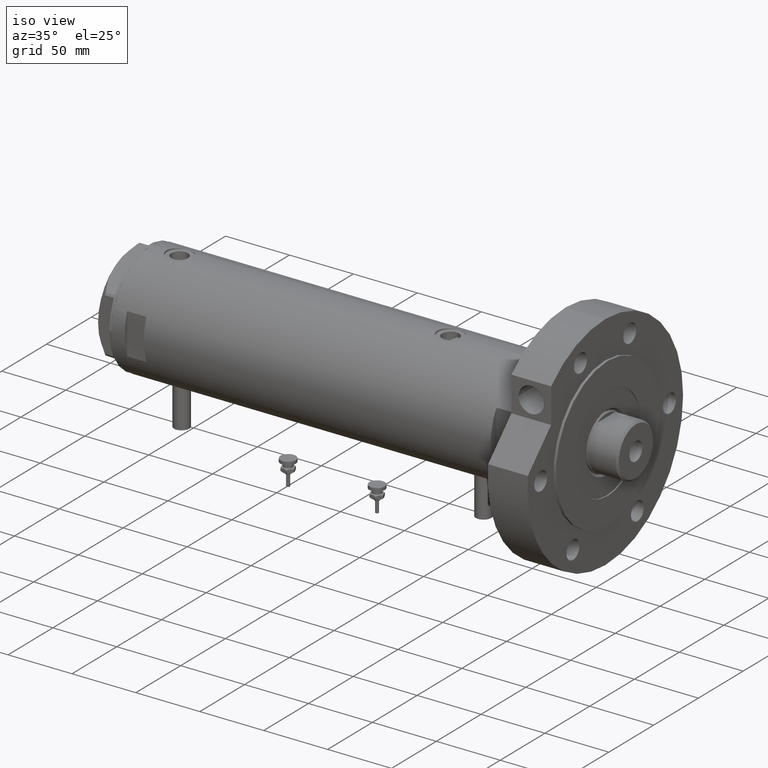
[diagram: clean part render]
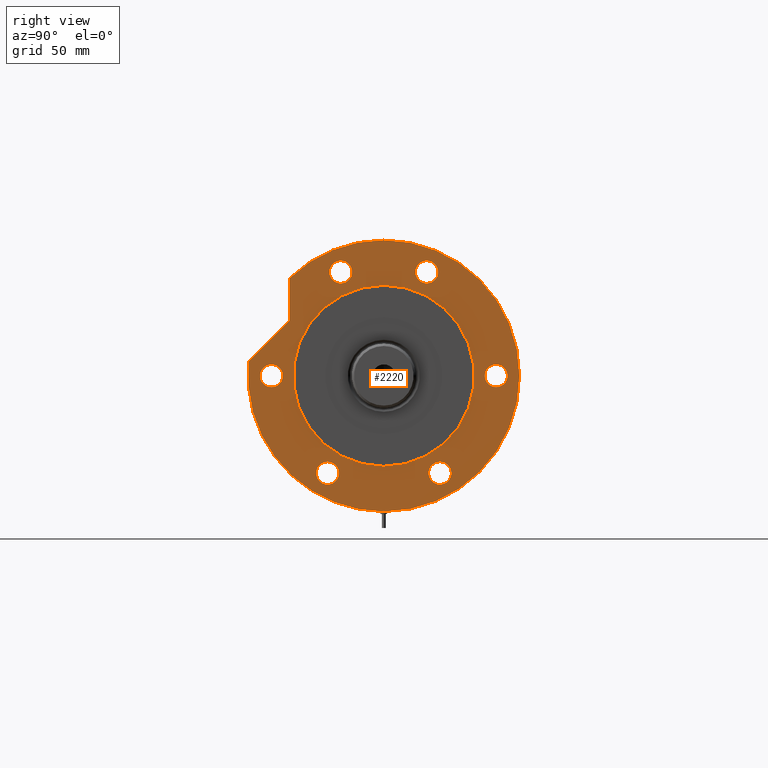
[diagram: tour spotlight — one face highlighted and labeled with its STEP entity id]
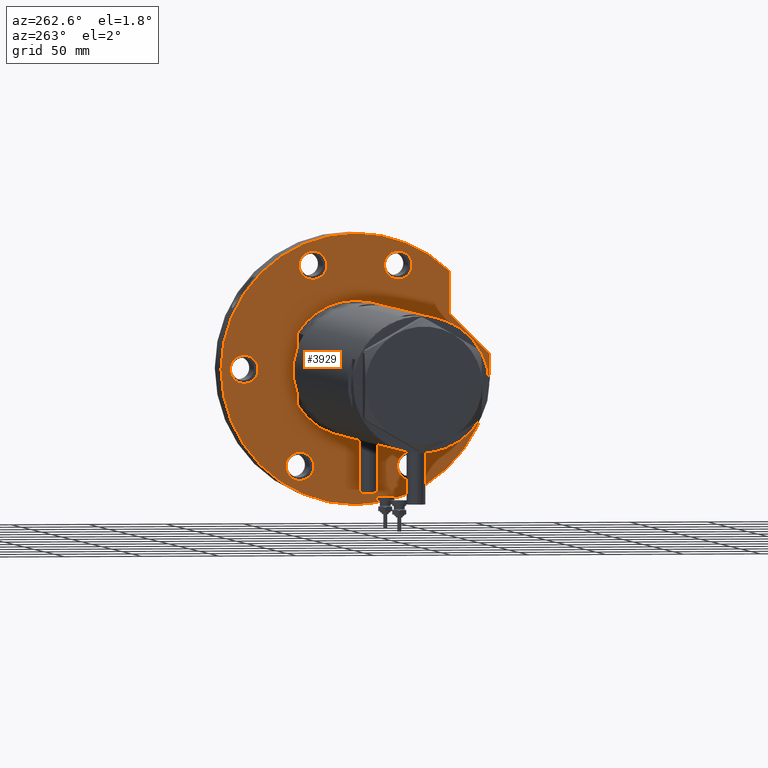
[diagram: tour spotlight — one face highlighted and labeled with its STEP entity id]
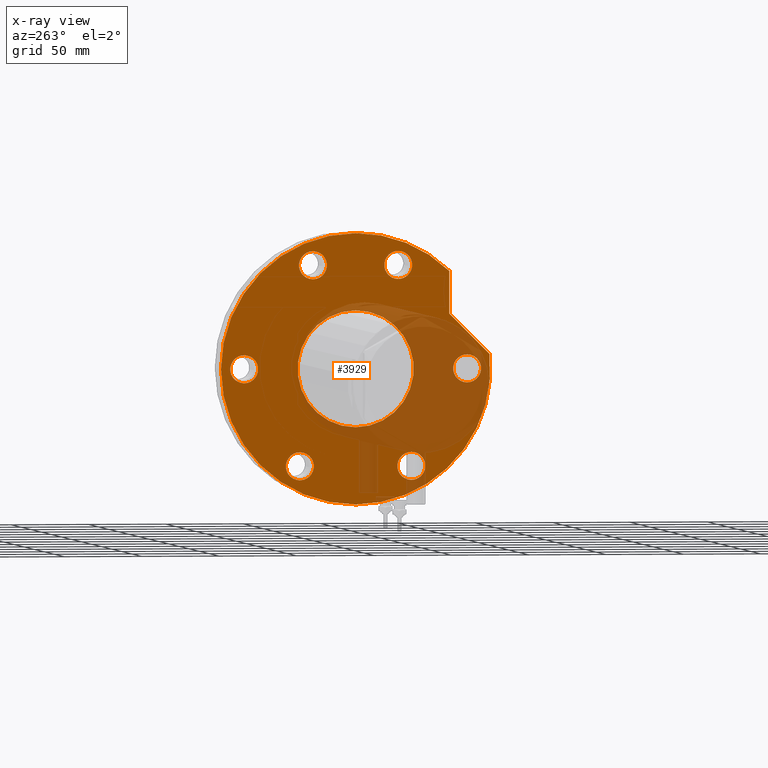
[diagram: x-ray of the same camera — body ghosted, this tour face saturated]
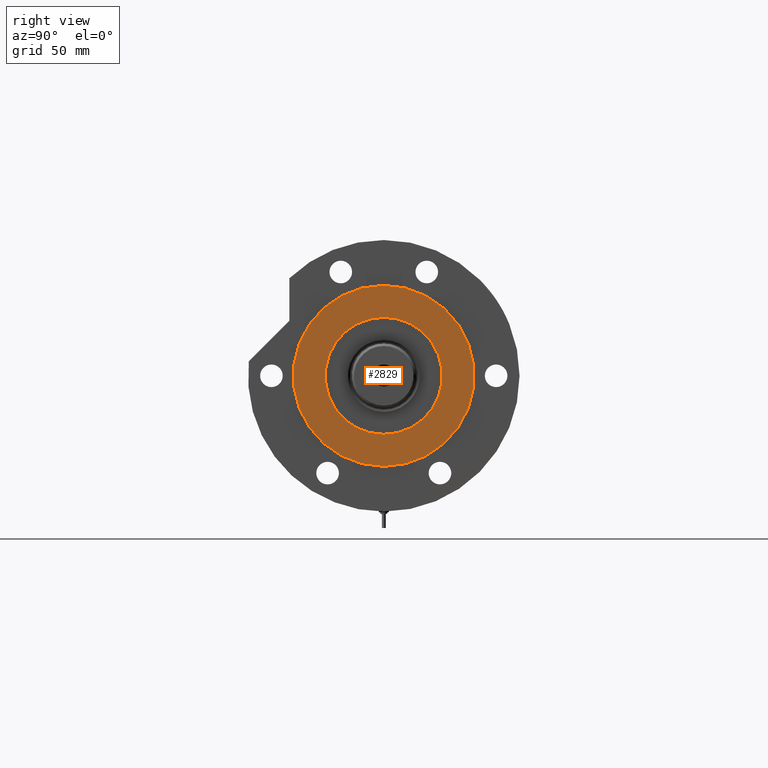
[diagram: tour spotlight — one face highlighted and labeled with its STEP entity id]
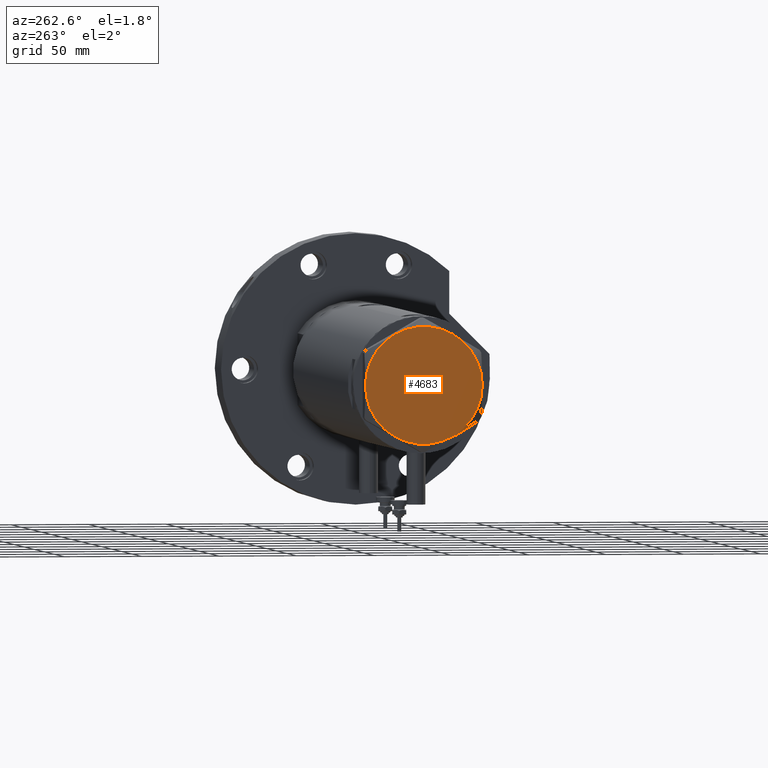
[diagram: tour spotlight — one face highlighted and labeled with its STEP entity id]
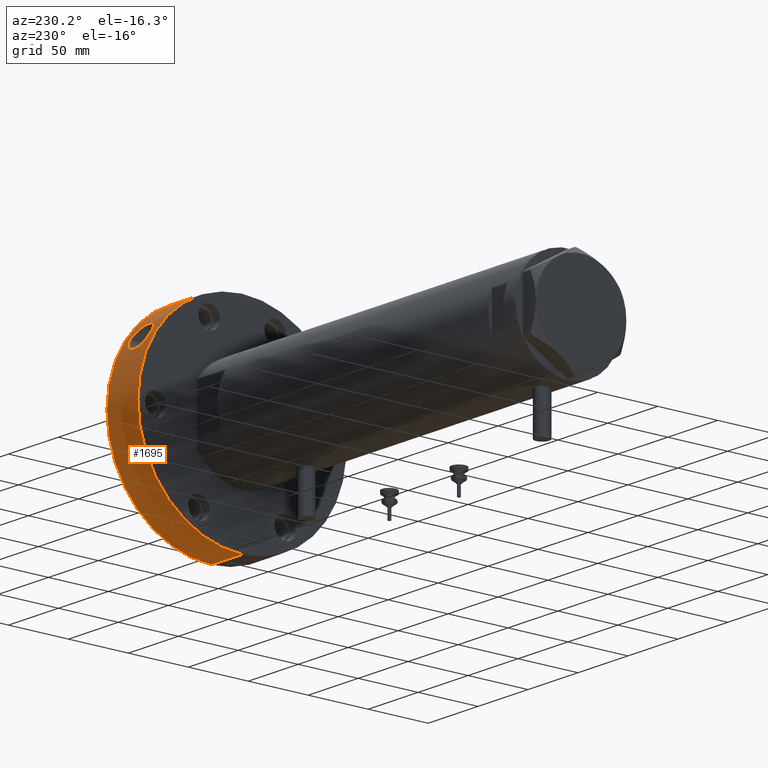
[diagram: tour spotlight — one face highlighted and labeled with its STEP entity id]
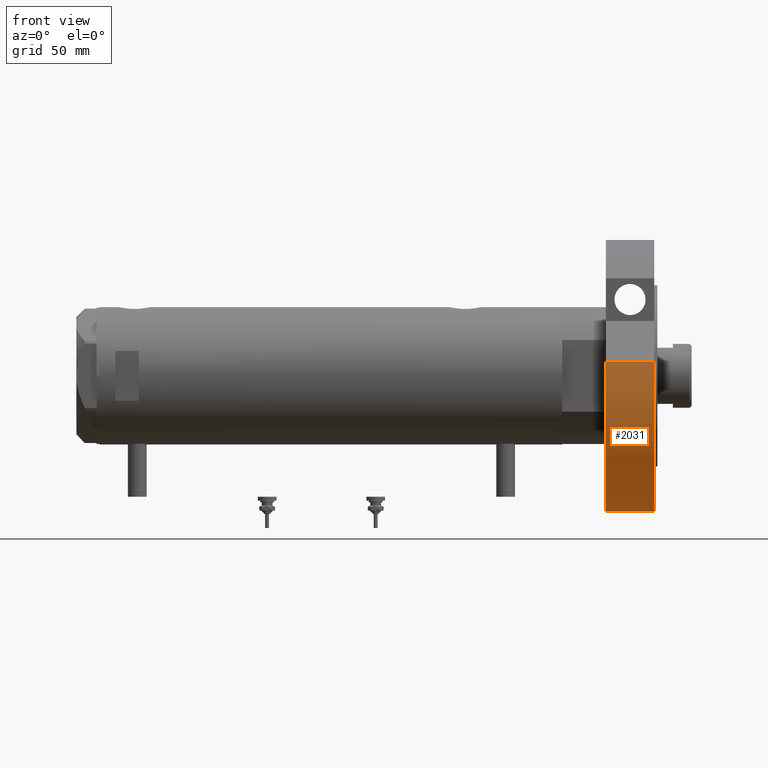
[diagram: tour spotlight — one face highlighted and labeled with its STEP entity id]
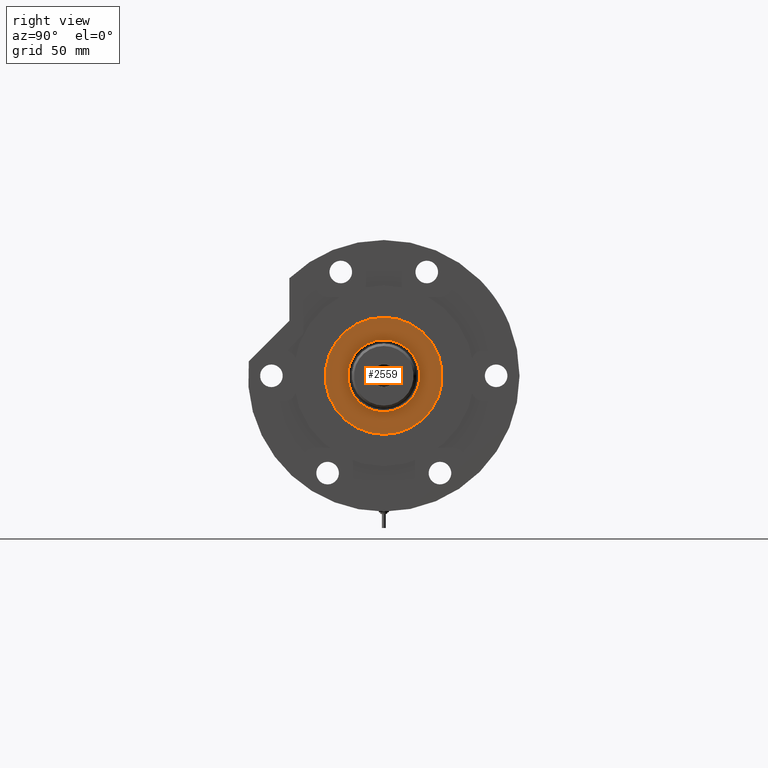
[diagram: tour spotlight — one face highlighted and labeled with its STEP entity id]
A machine part: a face-by-face anatomy tour. The part has 257 B-rep faces; the first image is the clean iso view, then the 7 largest visible faces are spotlighted one at a time (largest first), each with its STEP entity span.

Face 1 — right view, entity #2220. In plain terms, the highlighted planar face has unit normal (1, 0, -0).
Definition (entity closure, byte-faithful):
#6 = LINE ( 'NONE', #6870, #3898 ) ;
#28 = AXIS2_PLACEMENT_3D ( 'NONE', #3777, #815, #324 ) ;
#117 = DIRECTION ( 'NONE',  ( 0.000000000000000000, 0.000000000000000000, 1.000000000000000000 ) ) ;
#123 = VERTEX_POINT ( 'NONE', #798 ) ;
#194 = DIRECTION ( 'NONE',  ( 1.000000000000000000, 0.000000000000000000, 0.000000000000000000 ) ) ;
#201 = CARTESIAN_POINT ( 'NONE',  ( -62.35382907247942086, -36.00000000000027711, 31.00000000000000000 ) ) ;
#209 = CARTESIAN_POINT ( 'NONE',  ( 0.000000000000000000, 0.000000000000000000, 31.00000000000000000 ) ) ;
#282 = CARTESIAN_POINT ( 'NONE',  ( -7.250000000000001776, 72.00000000000000000, 31.00000000000000000 ) ) ;
#323 = CARTESIAN_POINT ( 'NONE',  ( 0.000000000000000000, 72.00000000000000000, 31.00000000000000000 ) ) ;
#324 = DIRECTION ( 'NONE',  ( 1.000000000000000000, 0.000000000000000000, 0.000000000000000000 ) ) ;
#341 = CARTESIAN_POINT ( 'NONE',  ( 66.51932634081252615, 27.55320713028675073, 31.00000000000000000 ) ) ;
#352 = AXIS2_PLACEMENT_3D ( 'NONE', #7501, #6994, #2166 ) ;
#443 = ORIENTED_EDGE ( 'NONE', *, *, #3596, .F. ) ;
#450 = DIRECTION ( 'NONE',  ( 1.000000000000000000, 0.000000000000000000, 0.000000000000000000 ) ) ;
#474 = CIRCLE ( 'NONE', #5956, 87.00000000000000000 ) ;
#516 = DIRECTION ( 'NONE',  ( 0.000000000000000000, 0.000000000000000000, 1.000000000000000000 ) ) ;
#543 = EDGE_CURVE ( 'NONE', #7251, #5629, #1677, .T. ) ;
#562 = CARTESIAN_POINT ( 'NONE',  ( 0.000000000000000000, -72.00000000000000000, 31.00000000000000000 ) ) ;
#653 = ORIENTED_EDGE ( 'NONE', *, *, #3333, .F. ) ;
#681 = CARTESIAN_POINT ( 'NONE',  ( 0.000000000000000000, 0.000000000000000000, 31.00000000000000000 ) ) ;
#757 = AXIS2_PLACEMENT_3D ( 'NONE', #3318, #516, #6813 ) ;
#778 = EDGE_CURVE ( 'NONE', #1156, #7175, #1527, .T. ) ;
#787 = EDGE_CURVE ( 'NONE', #2539, #3770, #6292, .T. ) ;
#798 = CARTESIAN_POINT ( 'NONE',  ( 73.76932634081251194, 27.55320713028675073, 31.00000000000000000 ) ) ;
#815 = DIRECTION ( 'NONE',  ( 0.000000000000000000, 0.000000000000000000, 1.000000000000000000 ) ) ;
#865 = EDGE_CURVE ( 'NONE', #6428, #123, #1670, .T. ) ;
#988 = CARTESIAN_POINT ( 'NONE',  ( 58.00000000000000000, 7.102951435054648059E-15, 31.00000000000000000 ) ) ;
#1027 = FACE_BOUND ( 'NONE', #6602, .T. ) ;
#1056 = DIRECTION ( 'NONE',  ( 0.000000000000000000, 0.000000000000000000, 1.000000000000000000 ) ) ;
#1107 = CARTESIAN_POINT ( 'NONE',  ( 9.196694222441541555, 86.51254715576759224, 31.00000000000000000 ) ) ;
#1116 = CIRCLE ( 'NONE', #757, 7.250000000000006217 ) ;
#1125 = CARTESIAN_POINT ( 'NONE',  ( 59.26932634081251905, 27.55320713028675073, 31.00000000000000000 ) ) ;
#1156 = VERTEX_POINT ( 'NONE', #3119 ) ;
#1163 = VERTEX_POINT ( 'NONE', #282 ) ;
#1175 = VERTEX_POINT ( 'NONE', #5406 ) ;
#1191 = CIRCLE ( 'NONE', #352, 7.249999999999992895 ) ;
#1279 = ORIENTED_EDGE ( 'NONE', *, *, #5266, .F. ) ;
#1337 = AXIS2_PLACEMENT_3D ( 'NONE', #6028, #3688, #1940 ) ;
#1394 = EDGE_CURVE ( 'NONE', #5629, #7251, #4366, .T. ) ;
#1409 = ORIENTED_EDGE ( 'NONE', *, *, #3000, .T. ) ;
#1453 = FACE_BOUND ( 'NONE', #2875, .T. ) ;
#1513 = CARTESIAN_POINT ( 'NONE',  ( -69.60382907247941375, -36.00000000000027711, 31.00000000000000000 ) ) ;
#1527 = LINE ( 'NONE', #6060, #2746 ) ;
#1567 = AXIS2_PLACEMENT_3D ( 'NONE', #323, #3776, #4802 ) ;
#1593 = DIRECTION ( 'NONE',  ( 1.000000000000000000, 0.000000000000000000, 0.000000000000000000 ) ) ;
#1621 = ORIENTED_EDGE ( 'NONE', *, *, #1394, .F. ) ;
#1628 = DIRECTION ( 'NONE',  ( 0.000000000000000000, 0.000000000000000000, 1.000000000000000000 ) ) ;
#1670 = CIRCLE ( 'NONE', #4211, 7.249999999999992895 ) ;
#1671 = VERTEX_POINT ( 'NONE', #1107 ) ;
#1677 = CIRCLE ( 'NONE', #6309, 7.250000000000001776 ) ;
#1693 = DIRECTION ( 'NONE',  ( 0.000000000000000000, 0.000000000000000000, 1.000000000000000000 ) ) ;
#1728 = DIRECTION ( 'NONE',  ( 0.000000000000000000, 0.000000000000000000, 1.000000000000000000 ) ) ;
#1765 = EDGE_LOOP ( 'NONE', ( #2023, #653 ) ) ;
#1940 = DIRECTION ( 'NONE',  ( 1.000000000000000000, 0.000000000000000000, 0.000000000000000000 ) ) ;
#1944 = DIRECTION ( 'NONE',  ( 1.000000000000000000, 0.000000000000000000, 0.000000000000000000 ) ) ;
#1978 = ORIENTED_EDGE ( 'NONE', *, *, #2124, .F. ) ;
#2023 = ORIENTED_EDGE ( 'NONE', *, *, #4710, .F. ) ;
#2098 = CARTESIAN_POINT ( 'NONE',  ( 0.000000000000000000, 0.000000000000000000, 31.00000000000000000 ) ) ;
#2108 = FACE_OUTER_BOUND ( 'NONE', #2543, .T. ) ;
#2124 = EDGE_CURVE ( 'NONE', #123, #6428, #6546, .T. ) ;
#2166 = DIRECTION ( 'NONE',  ( 1.000000000000000000, 0.000000000000000000, 0.000000000000000000 ) ) ;
#2220 = ADVANCED_FACE ( 'NONE', ( #1027, #4513, #4990, #2786, #1453, #2745, #2108, #5066 ), #6774, .T. ) ;
#2282 = VERTEX_POINT ( 'NONE', #6646 ) ;
#2320 = VERTEX_POINT ( 'NONE', #5389 ) ;
#2340 = CARTESIAN_POINT ( 'NONE',  ( 0.000000000000000000, -72.00000000000000000, 31.00000000000000000 ) ) ;
#2539 = VERTEX_POINT ( 'NONE', #1513 ) ;
#2543 = EDGE_LOOP ( 'NONE', ( #7149, #6721, #4988, #1409, #6114 ) ) ;
#2626 = CARTESIAN_POINT ( 'NONE',  ( -58.00000000000000000, 0.000000000000000000, 31.00000000000000000 ) ) ;
#2673 = CIRCLE ( 'NONE', #7460, 87.00000000000000000 ) ;
#2725 = DIRECTION ( 'NONE',  ( 0.7071067811865511255, -0.7071067811865440200, 0.000000000000000000 ) ) ;
#2729 = ORIENTED_EDGE ( 'NONE', *, *, #4028, .F. ) ;
#2745 = FACE_BOUND ( 'NONE', #4884, .T. ) ;
#2746 = VECTOR ( 'NONE', #4856, 1000.000000000000000 ) ;
#2754 = AXIS2_PLACEMENT_3D ( 'NONE', #2340, #1693, #6394 ) ;
#2786 = FACE_BOUND ( 'NONE', #5042, .T. ) ;
#2787 = CARTESIAN_POINT ( 'NONE',  ( -55.10382907247942796, -36.00000000000027711, 31.00000000000000000 ) ) ;
#2798 = CARTESIAN_POINT ( 'NONE',  ( 66.51932634081252615, -27.55320713028675073, 31.00000000000000000 ) ) ;
#2804 = CIRCLE ( 'NONE', #1337, 58.00000000000000000 ) ;
#2811 = EDGE_CURVE ( 'NONE', #4539, #1163, #7432, .T. ) ;
#2840 = CARTESIAN_POINT ( 'NONE',  ( 7.250000000000001776, 72.00000000000000000, 31.00000000000000000 ) ) ;
#2875 = EDGE_LOOP ( 'NONE', ( #4451, #6984 ) ) ;
#2887 = EDGE_CURVE ( 'NONE', #3770, #2539, #1191, .T. ) ;
#2897 = CARTESIAN_POINT ( 'NONE',  ( 7.250000000000001776, -72.00000000000000000, 31.00000000000000000 ) ) ;
#2918 = AXIS2_PLACEMENT_3D ( 'NONE', #5332, #1728, #4064 ) ;
#2990 = AXIS2_PLACEMENT_3D ( 'NONE', #201, #5322, #6520 ) ;
#3000 = EDGE_CURVE ( 'NONE', #2320, #6226, #474, .T. ) ;
#3043 = ORIENTED_EDGE ( 'NONE', *, *, #543, .F. ) ;
#3119 = CARTESIAN_POINT ( 'NONE',  ( 35.23236590573035443, 60.47687547247904405, 31.00000000000000000 ) ) ;
#3250 = AXIS2_PLACEMENT_3D ( 'NONE', #3918, #3340, #450 ) ;
#3318 = CARTESIAN_POINT ( 'NONE',  ( -62.35382907247965534, 35.99999999999985079, 31.00000000000000000 ) ) ;
#3333 = EDGE_CURVE ( 'NONE', #1175, #6167, #5458, .T. ) ;
#3340 = DIRECTION ( 'NONE',  ( 0.000000000000000000, 0.000000000000000000, 1.000000000000000000 ) ) ;
#3347 = DIRECTION ( 'NONE',  ( 0.000000000000000000, 0.000000000000000000, 1.000000000000000000 ) ) ;
#3393 = ORIENTED_EDGE ( 'NONE', *, *, #4986, .F. ) ;
#3396 = DIRECTION ( 'NONE',  ( 1.000000000000000000, 0.000000000000000000, 0.000000000000000000 ) ) ;
#3453 = DIRECTION ( 'NONE',  ( 1.000000000000000000, 0.000000000000000000, 0.000000000000000000 ) ) ;
#3596 = EDGE_CURVE ( 'NONE', #1163, #4539, #3887, .T. ) ;
#3603 = ORIENTED_EDGE ( 'NONE', *, *, #865, .F. ) ;
#3643 = DIRECTION ( 'NONE',  ( 0.000000000000000000, 0.000000000000000000, 1.000000000000000000 ) ) ;
#3688 = DIRECTION ( 'NONE',  ( 0.000000000000000000, 0.000000000000000000, 1.000000000000000000 ) ) ;
#3770 = VERTEX_POINT ( 'NONE', #2787 ) ;
#3774 = DIRECTION ( 'NONE',  ( 0.000000000000000000, 0.000000000000000000, 1.000000000000000000 ) ) ;
#3776 = DIRECTION ( 'NONE',  ( 0.000000000000000000, 0.000000000000000000, 1.000000000000000000 ) ) ;
#3777 = CARTESIAN_POINT ( 'NONE',  ( 66.51932634081252615, -27.55320713028675073, 31.00000000000000000 ) ) ;
#3844 = VERTEX_POINT ( 'NONE', #4658 ) ;
#3878 = EDGE_LOOP ( 'NONE', ( #2729, #1279 ) ) ;
#3882 = AXIS2_PLACEMENT_3D ( 'NONE', #5791, #1628, #3453 ) ;
#3887 = CIRCLE ( 'NONE', #1567, 7.250000000000001776 ) ;
#3898 = VECTOR ( 'NONE', #2725, 999.9999999999998863 ) ;
#3918 = CARTESIAN_POINT ( 'NONE',  ( 66.51932634081252615, 27.55320713028675073, 31.00000000000000000 ) ) ;
#3924 = ORIENTED_EDGE ( 'NONE', *, *, #2811, .F. ) ;
#3953 = DIRECTION ( 'NONE',  ( 0.000000000000000000, 0.000000000000000000, 1.000000000000000000 ) ) ;
#3969 = VERTEX_POINT ( 'NONE', #2626 ) ;
#4028 = EDGE_CURVE ( 'NONE', #3969, #4176, #7207, .T. ) ;
#4050 = AXIS2_PLACEMENT_3D ( 'NONE', #209, #6178, #1944 ) ;
#4064 = DIRECTION ( 'NONE',  ( 1.000000000000000000, 0.000000000000000000, 0.000000000000000000 ) ) ;
#4123 = ORIENTED_EDGE ( 'NONE', *, *, #6745, .F. ) ;
#4176 = VERTEX_POINT ( 'NONE', #988 ) ;
#4211 = AXIS2_PLACEMENT_3D ( 'NONE', #341, #3347, #1593 ) ;
#4224 = DIRECTION ( 'NONE',  ( 1.000000000000000000, 0.000000000000000000, 0.000000000000000000 ) ) ;
#4225 = CARTESIAN_POINT ( 'NONE',  ( -7.250000000000001776, -72.00000000000000000, 31.00000000000000000 ) ) ;
#4360 = EDGE_CURVE ( 'NONE', #1671, #2320, #2673, .T. ) ;
#4366 = CIRCLE ( 'NONE', #2754, 7.250000000000001776 ) ;
#4451 = ORIENTED_EDGE ( 'NONE', *, *, #787, .F. ) ;
#4484 = CARTESIAN_POINT ( 'NONE',  ( 59.26932634081251905, -27.55320713028675073, 31.00000000000000000 ) ) ;
#4500 = AXIS2_PLACEMENT_3D ( 'NONE', #2098, #1056, #3396 ) ;
#4510 = EDGE_CURVE ( 'NONE', #1671, #1156, #6, .T. ) ;
#4513 = FACE_BOUND ( 'NONE', #5746, .T. ) ;
#4521 = DIRECTION ( 'NONE',  ( 0.000000000000000000, 0.000000000000000000, 1.000000000000000000 ) ) ;
#4539 = VERTEX_POINT ( 'NONE', #2840 ) ;
#4628 = CIRCLE ( 'NONE', #2918, 7.250000000000006217 ) ;
#4658 = CARTESIAN_POINT ( 'NONE',  ( -69.60382907247965534, 35.99999999999985079, 31.00000000000000000 ) ) ;
#4710 = EDGE_CURVE ( 'NONE', #6167, #1175, #5856, .T. ) ;
#4756 = CARTESIAN_POINT ( 'NONE',  ( 0.000000000000000000, 0.000000000000000000, 31.00000000000000000 ) ) ;
#4802 = DIRECTION ( 'NONE',  ( 1.000000000000000000, 0.000000000000000000, 0.000000000000000000 ) ) ;
#4856 = DIRECTION ( 'NONE',  ( 1.000000000000000000, 0.000000000000000000, -0.000000000000000000 ) ) ;
#4884 = EDGE_LOOP ( 'NONE', ( #3393, #4123 ) ) ;
#4986 = EDGE_CURVE ( 'NONE', #3844, #2282, #4628, .T. ) ;
#4988 = ORIENTED_EDGE ( 'NONE', *, *, #4360, .T. ) ;
#4990 = FACE_BOUND ( 'NONE', #1765, .T. ) ;
#5042 = EDGE_LOOP ( 'NONE', ( #1621, #3043 ) ) ;
#5066 = FACE_BOUND ( 'NONE', #3878, .T. ) ;
#5107 = DIRECTION ( 'NONE',  ( 1.000000000000000000, 0.000000000000000000, 0.000000000000000000 ) ) ;
#5266 = EDGE_CURVE ( 'NONE', #4176, #3969, #2804, .T. ) ;
#5309 = AXIS2_PLACEMENT_3D ( 'NONE', #6857, #3774, #7044 ) ;
#5322 = DIRECTION ( 'NONE',  ( 0.000000000000000000, 0.000000000000000000, 1.000000000000000000 ) ) ;
#5332 = CARTESIAN_POINT ( 'NONE',  ( -62.35382907247965534, 35.99999999999985079, 31.00000000000000000 ) ) ;
#5363 = CIRCLE ( 'NONE', #4050, 87.00000000000000000 ) ;
#5389 = CARTESIAN_POINT ( 'NONE',  ( -87.00000000000000000, 0.000000000000000000, 31.00000000000000000 ) ) ;
#5406 = CARTESIAN_POINT ( 'NONE',  ( 73.76932634081251194, -27.55320713028675073, 31.00000000000000000 ) ) ;
#5458 = CIRCLE ( 'NONE', #6325, 7.249999999999992895 ) ;
#5629 = VERTEX_POINT ( 'NONE', #4225 ) ;
#5746 = EDGE_LOOP ( 'NONE', ( #3603, #1978 ) ) ;
#5791 = CARTESIAN_POINT ( 'NONE',  ( 0.000000000000000000, 72.00000000000000000, 31.00000000000000000 ) ) ;
#5856 = CIRCLE ( 'NONE', #28, 7.249999999999992895 ) ;
#5956 = AXIS2_PLACEMENT_3D ( 'NONE', #681, #117, #194 ) ;
#6028 = CARTESIAN_POINT ( 'NONE',  ( 0.000000000000000000, 0.000000000000000000, 31.00000000000000000 ) ) ;
#6060 = CARTESIAN_POINT ( 'NONE',  ( 0.000000000000000000, 60.47687547247904405, 31.00000000000000000 ) ) ;
#6114 = ORIENTED_EDGE ( 'NONE', *, *, #6548, .T. ) ;
#6126 = CARTESIAN_POINT ( 'NONE',  ( 87.00000000000000000, 1.065442715258197209E-14, 31.00000000000000000 ) ) ;
#6167 = VERTEX_POINT ( 'NONE', #4484 ) ;
#6178 = DIRECTION ( 'NONE',  ( 0.000000000000000000, 0.000000000000000000, 1.000000000000000000 ) ) ;
#6226 = VERTEX_POINT ( 'NONE', #6126 ) ;
#6275 = DIRECTION ( 'NONE',  ( 1.000000000000000000, 0.000000000000000000, 0.000000000000000000 ) ) ;
#6292 = CIRCLE ( 'NONE', #2990, 7.249999999999992895 ) ;
#6309 = AXIS2_PLACEMENT_3D ( 'NONE', #562, #3953, #5107 ) ;
#6325 = AXIS2_PLACEMENT_3D ( 'NONE', #2798, #4521, #6275 ) ;
#6394 = DIRECTION ( 'NONE',  ( 1.000000000000000000, 0.000000000000000000, 0.000000000000000000 ) ) ;
#6428 = VERTEX_POINT ( 'NONE', #1125 ) ;
#6520 = DIRECTION ( 'NONE',  ( 1.000000000000000000, 0.000000000000000000, 0.000000000000000000 ) ) ;
#6546 = CIRCLE ( 'NONE', #3250, 7.249999999999992895 ) ;
#6548 = EDGE_CURVE ( 'NONE', #6226, #7175, #5363, .T. ) ;
#6602 = EDGE_LOOP ( 'NONE', ( #443, #3924 ) ) ;
#6646 = CARTESIAN_POINT ( 'NONE',  ( -55.10382907247964823, 35.99999999999985079, 31.00000000000000000 ) ) ;
#6721 = ORIENTED_EDGE ( 'NONE', *, *, #4510, .F. ) ;
#6745 = EDGE_CURVE ( 'NONE', #2282, #3844, #1116, .T. ) ;
#6774 = PLANE ( 'NONE',  #5309 ) ;
#6813 = DIRECTION ( 'NONE',  ( 1.000000000000000000, 0.000000000000000000, 0.000000000000000000 ) ) ;
#6857 = CARTESIAN_POINT ( 'NONE',  ( 0.000000000000000000, 0.000000000000000000, 31.00000000000000000 ) ) ;
#6870 = CARTESIAN_POINT ( 'NONE',  ( 47.85462068910451450, 47.85462068910500477, 31.00000000000000000 ) ) ;
#6984 = ORIENTED_EDGE ( 'NONE', *, *, #2887, .F. ) ;
#6994 = DIRECTION ( 'NONE',  ( 0.000000000000000000, 0.000000000000000000, 1.000000000000000000 ) ) ;
#7044 = DIRECTION ( 'NONE',  ( 1.000000000000000000, 0.000000000000000000, -0.000000000000000000 ) ) ;
#7149 = ORIENTED_EDGE ( 'NONE', *, *, #778, .F. ) ;
#7175 = VERTEX_POINT ( 'NONE', #7402 ) ;
#7207 = CIRCLE ( 'NONE', #4500, 58.00000000000000000 ) ;
#7251 = VERTEX_POINT ( 'NONE', #2897 ) ;
#7402 = CARTESIAN_POINT ( 'NONE',  ( 62.54236590573034249, 60.47687547247904405, 31.00000000000000000 ) ) ;
#7432 = CIRCLE ( 'NONE', #3882, 7.250000000000001776 ) ;
#7460 = AXIS2_PLACEMENT_3D ( 'NONE', #4756, #3643, #4224 ) ;
#7501 = CARTESIAN_POINT ( 'NONE',  ( -62.35382907247942086, -36.00000000000027711, 31.00000000000000000 ) ) ;

Face 2 — auxiliary view, entity #3929. An x-ray twin of the same camera follows (body ghosted, this face saturated) — the face is partly hidden behind the body. In plain terms, the highlighted planar face has unit normal (1, 0, -0).
Definition (entity closure, byte-faithful):
#34 = DIRECTION ( 'NONE',  ( -1.000000000000000000, 0.000000000000000000, 0.000000000000000000 ) ) ;
#159 = CIRCLE ( 'NONE', #2214, 9.000000000000001776 ) ;
#178 = FACE_BOUND ( 'NONE', #1995, .T. ) ;
#216 = DIRECTION ( 'NONE',  ( 0.000000000000000000, 0.000000000000000000, -1.000000000000000000 ) ) ;
#250 = CARTESIAN_POINT ( 'NONE',  ( 9.196694222441541555, 86.51254715576759224, 0.000000000000000000 ) ) ;
#292 = CARTESIAN_POINT ( 'NONE',  ( 87.00000000000000000, 1.065442715258197209E-14, 0.000000000000000000 ) ) ;
#325 = DIRECTION ( 'NONE',  ( 0.000000000000000000, 0.000000000000000000, -1.000000000000000000 ) ) ;
#346 = AXIS2_PLACEMENT_3D ( 'NONE', #4005, #4535, #5760 ) ;
#374 = CARTESIAN_POINT ( 'NONE',  ( 66.51932634081252615, 27.55320713028675073, 0.000000000000000000 ) ) ;
#381 = CARTESIAN_POINT ( 'NONE',  ( -71.35382907247941375, -36.00000000000027711, 0.000000000000000000 ) ) ;
#398 = CIRCLE ( 'NONE', #4056, 87.00000000000000000 ) ;
#513 = EDGE_CURVE ( 'NONE', #2490, #1390, #4001, .T. ) ;
#528 = AXIS2_PLACEMENT_3D ( 'NONE', #374, #1585, #2193 ) ;
#597 = CIRCLE ( 'NONE', #346, 9.000000000000001776 ) ;
#607 = CIRCLE ( 'NONE', #2537, 87.00000000000000000 ) ;
#622 = VERTEX_POINT ( 'NONE', #2516 ) ;
#701 = CARTESIAN_POINT ( 'NONE',  ( -62.35382907247942086, -36.00000000000027711, 0.000000000000000000 ) ) ;
#805 = FACE_BOUND ( 'NONE', #2852, .T. ) ;
#887 = DIRECTION ( 'NONE',  ( 1.000000000000000000, 0.000000000000000000, 0.000000000000000000 ) ) ;
#921 = CARTESIAN_POINT ( 'NONE',  ( 0.000000000000000000, 0.000000000000000000, 0.000000000000000000 ) ) ;
#960 = DIRECTION ( 'NONE',  ( 0.000000000000000000, 0.000000000000000000, -1.000000000000000000 ) ) ;
#971 = AXIS2_PLACEMENT_3D ( 'NONE', #4437, #216, #7324 ) ;
#1009 = EDGE_CURVE ( 'NONE', #622, #2520, #597, .T. ) ;
#1013 = ORIENTED_EDGE ( 'NONE', *, *, #6322, .F. ) ;
#1081 = DIRECTION ( 'NONE',  ( 0.000000000000000000, 0.000000000000000000, -1.000000000000000000 ) ) ;
#1090 = EDGE_CURVE ( 'NONE', #4910, #7549, #6440, .T. ) ;
#1108 = ORIENTED_EDGE ( 'NONE', *, *, #1599, .T. ) ;
#1293 = CIRCLE ( 'NONE', #7298, 37.50000000000000711 ) ;
#1334 = CARTESIAN_POINT ( 'NONE',  ( -37.50000000000000711, 4.592425496802575156E-15, 0.000000000000000000 ) ) ;
#1390 = VERTEX_POINT ( 'NONE', #2869 ) ;
#1444 = ORIENTED_EDGE ( 'NONE', *, *, #4720, .F. ) ;
#1445 = FACE_BOUND ( 'NONE', #1704, .T. ) ;
#1484 = AXIS2_PLACEMENT_3D ( 'NONE', #4913, #325, #3740 ) ;
#1542 = CARTESIAN_POINT ( 'NONE',  ( 75.51932634081252615, -27.55320713028675073, 0.000000000000000000 ) ) ;
#1585 = DIRECTION ( 'NONE',  ( 0.000000000000000000, 0.000000000000000000, -1.000000000000000000 ) ) ;
#1599 = EDGE_CURVE ( 'NONE', #1842, #6364, #1293, .T. ) ;
#1601 = CARTESIAN_POINT ( 'NONE',  ( 37.50000000000000711, 0.000000000000000000, 0.000000000000000000 ) ) ;
#1701 = EDGE_LOOP ( 'NONE', ( #7389, #4062 ) ) ;
#1704 = EDGE_LOOP ( 'NONE', ( #1013, #5957 ) ) ;
#1717 = CARTESIAN_POINT ( 'NONE',  ( 35.23236590573035443, 60.47687547247904405, 0.000000000000000000 ) ) ;
#1814 = AXIS2_PLACEMENT_3D ( 'NONE', #5685, #6765, #2136 ) ;
#1842 = VERTEX_POINT ( 'NONE', #1601 ) ;
#1971 = VERTEX_POINT ( 'NONE', #6050 ) ;
#1982 = ORIENTED_EDGE ( 'NONE', *, *, #4668, .F. ) ;
#1995 = EDGE_LOOP ( 'NONE', ( #2858, #2457 ) ) ;
#2020 = CARTESIAN_POINT ( 'NONE',  ( 0.000000000000000000, 0.000000000000000000, 0.000000000000000000 ) ) ;
#2057 = PLANE ( 'NONE',  #2304 ) ;
#2081 = AXIS2_PLACEMENT_3D ( 'NONE', #2919, #6955, #5242 ) ;
#2086 = CIRCLE ( 'NONE', #528, 9.000000000000001776 ) ;
#2136 = DIRECTION ( 'NONE',  ( 1.000000000000000000, 0.000000000000000000, 0.000000000000000000 ) ) ;
#2185 = CARTESIAN_POINT ( 'NONE',  ( 8.999999999999998224, -72.00000000000000000, 0.000000000000000000 ) ) ;
#2193 = DIRECTION ( 'NONE',  ( -1.000000000000000000, 0.000000000000000000, 0.000000000000000000 ) ) ;
#2214 = AXIS2_PLACEMENT_3D ( 'NONE', #701, #1081, #2235 ) ;
#2235 = DIRECTION ( 'NONE',  ( -1.000000000000000000, 0.000000000000000000, 0.000000000000000000 ) ) ;
#2304 = AXIS2_PLACEMENT_3D ( 'NONE', #3653, #2509, #6608 ) ;
#2315 = DIRECTION ( 'NONE',  ( 0.000000000000000000, 0.000000000000000000, -1.000000000000000000 ) ) ;
#2402 = DIRECTION ( 'NONE',  ( 0.7071067811865511255, -0.7071067811865440200, -0.000000000000000000 ) ) ;
#2406 = CARTESIAN_POINT ( 'NONE',  ( -87.00000000000000000, 0.000000000000000000, 0.000000000000000000 ) ) ;
#2434 = CIRCLE ( 'NONE', #5108, 9.000000000000001776 ) ;
#2457 = ORIENTED_EDGE ( 'NONE', *, *, #3899, .F. ) ;
#2478 = DIRECTION ( 'NONE',  ( -1.000000000000000000, 0.000000000000000000, 0.000000000000000000 ) ) ;
#2490 = VERTEX_POINT ( 'NONE', #6879 ) ;
#2509 = DIRECTION ( 'NONE',  ( 0.000000000000000000, 0.000000000000000000, 1.000000000000000000 ) ) ;
#2516 = CARTESIAN_POINT ( 'NONE',  ( -53.35382907247941375, -36.00000000000027711, 0.000000000000000000 ) ) ;
#2520 = VERTEX_POINT ( 'NONE', #381 ) ;
#2537 = AXIS2_PLACEMENT_3D ( 'NONE', #921, #3738, #887 ) ;
#2547 = FACE_BOUND ( 'NONE', #3341, .T. ) ;
#2814 = EDGE_CURVE ( 'NONE', #7374, #7271, #4008, .T. ) ;
#2827 = CIRCLE ( 'NONE', #1484, 8.999999999999998224 ) ;
#2852 = EDGE_LOOP ( 'NONE', ( #1108, #5638 ) ) ;
#2858 = ORIENTED_EDGE ( 'NONE', *, *, #5378, .F. ) ;
#2869 = CARTESIAN_POINT ( 'NONE',  ( 75.51932634081252615, 27.55320713028675073, 0.000000000000000000 ) ) ;
#2905 = EDGE_LOOP ( 'NONE', ( #4636, #1444 ) ) ;
#2919 = CARTESIAN_POINT ( 'NONE',  ( 0.000000000000000000, 0.000000000000000000, 0.000000000000000000 ) ) ;
#3155 = FACE_BOUND ( 'NONE', #2905, .T. ) ;
#3195 = DIRECTION ( 'NONE',  ( 0.000000000000000000, 0.000000000000000000, -1.000000000000000000 ) ) ;
#3199 = DIRECTION ( 'NONE',  ( 0.000000000000000000, 0.000000000000000000, -1.000000000000000000 ) ) ;
#3341 = EDGE_LOOP ( 'NONE', ( #4283, #1982 ) ) ;
#3469 = DIRECTION ( 'NONE',  ( 0.000000000000000000, 0.000000000000000000, 1.000000000000000000 ) ) ;
#3471 = LINE ( 'NONE', #5892, #4376 ) ;
#3504 = EDGE_CURVE ( 'NONE', #3525, #7339, #607, .T. ) ;
#3511 = CARTESIAN_POINT ( 'NONE',  ( -8.999999999999998224, -72.00000000000000000, 0.000000000000000000 ) ) ;
#3525 = VERTEX_POINT ( 'NONE', #250 ) ;
#3573 = LINE ( 'NONE', #1717, #6838 ) ;
#3638 = CIRCLE ( 'NONE', #4744, 9.000000000000001776 ) ;
#3653 = CARTESIAN_POINT ( 'NONE',  ( 0.000000000000000000, 0.000000000000000000, 0.000000000000000000 ) ) ;
#3685 = EDGE_CURVE ( 'NONE', #5568, #4705, #4013, .T. ) ;
#3699 = CARTESIAN_POINT ( 'NONE',  ( -62.35382907247965534, 35.99999999999985079, 0.000000000000000000 ) ) ;
#3738 = DIRECTION ( 'NONE',  ( 0.000000000000000000, 0.000000000000000000, 1.000000000000000000 ) ) ;
#3740 = DIRECTION ( 'NONE',  ( -1.000000000000000000, 0.000000000000000000, 0.000000000000000000 ) ) ;
#3839 = EDGE_CURVE ( 'NONE', #3525, #1971, #3471, .T. ) ;
#3895 = DIRECTION ( 'NONE',  ( -1.000000000000000000, 0.000000000000000000, 0.000000000000000000 ) ) ;
#3899 = EDGE_CURVE ( 'NONE', #6274, #3978, #5595, .T. ) ;
#3929 = ADVANCED_FACE ( 'NONE', ( #6065, #5443, #178, #3155, #1445, #2547, #805, #5995 ), #2057, .F. ) ;
#3959 = ORIENTED_EDGE ( 'NONE', *, *, #3839, .T. ) ;
#3978 = VERTEX_POINT ( 'NONE', #4937 ) ;
#4001 = CIRCLE ( 'NONE', #6815, 9.000000000000001776 ) ;
#4005 = CARTESIAN_POINT ( 'NONE',  ( -62.35382907247942086, -36.00000000000027711, 0.000000000000000000 ) ) ;
#4008 = CIRCLE ( 'NONE', #7067, 8.999999999999998224 ) ;
#4013 = CIRCLE ( 'NONE', #5714, 9.000000000000001776 ) ;
#4056 = AXIS2_PLACEMENT_3D ( 'NONE', #2020, #6030, #4348 ) ;
#4062 = ORIENTED_EDGE ( 'NONE', *, *, #1090, .F. ) ;
#4115 = EDGE_CURVE ( 'NONE', #6364, #1842, #5463, .T. ) ;
#4150 = DIRECTION ( 'NONE',  ( 1.000000000000000000, 0.000000000000000000, 0.000000000000000000 ) ) ;
#4230 = CARTESIAN_POINT ( 'NONE',  ( 66.51932634081252615, -27.55320713028675073, 0.000000000000000000 ) ) ;
#4255 = EDGE_CURVE ( 'NONE', #1971, #6239, #3573, .T. ) ;
#4260 = CIRCLE ( 'NONE', #971, 8.999999999999998224 ) ;
#4283 = ORIENTED_EDGE ( 'NONE', *, *, #3685, .F. ) ;
#4321 = DIRECTION ( 'NONE',  ( 0.000000000000000000, 0.000000000000000000, -1.000000000000000000 ) ) ;
#4343 = ORIENTED_EDGE ( 'NONE', *, *, #5852, .F. ) ;
#4348 = DIRECTION ( 'NONE',  ( 1.000000000000000000, 0.000000000000000000, 0.000000000000000000 ) ) ;
#4376 = VECTOR ( 'NONE', #2402, 999.9999999999998863 ) ;
#4418 = EDGE_LOOP ( 'NONE', ( #4449, #7079 ) ) ;
#4437 = CARTESIAN_POINT ( 'NONE',  ( 0.000000000000000000, -72.00000000000000000, 0.000000000000000000 ) ) ;
#4449 = ORIENTED_EDGE ( 'NONE', *, *, #513, .F. ) ;
#4535 = DIRECTION ( 'NONE',  ( 0.000000000000000000, 0.000000000000000000, -1.000000000000000000 ) ) ;
#4568 = CARTESIAN_POINT ( 'NONE',  ( 0.000000000000000000, -72.00000000000000000, 0.000000000000000000 ) ) ;
#4636 = ORIENTED_EDGE ( 'NONE', *, *, #2814, .F. ) ;
#4668 = EDGE_CURVE ( 'NONE', #4705, #5568, #3638, .T. ) ;
#4705 = VERTEX_POINT ( 'NONE', #4836 ) ;
#4720 = EDGE_CURVE ( 'NONE', #7271, #7374, #4260, .T. ) ;
#4726 = AXIS2_PLACEMENT_3D ( 'NONE', #6789, #3199, #2478 ) ;
#4744 = AXIS2_PLACEMENT_3D ( 'NONE', #3699, #4321, #4992 ) ;
#4836 = CARTESIAN_POINT ( 'NONE',  ( -53.35382907247965534, 35.99999999999985079, 0.000000000000000000 ) ) ;
#4910 = VERTEX_POINT ( 'NONE', #6347 ) ;
#4913 = CARTESIAN_POINT ( 'NONE',  ( 0.000000000000000000, 72.00000000000000000, 0.000000000000000000 ) ) ;
#4937 = CARTESIAN_POINT ( 'NONE',  ( 57.51932634081251905, -27.55320713028675073, 0.000000000000000000 ) ) ;
#4982 = DIRECTION ( 'NONE',  ( 0.000000000000000000, 0.000000000000000000, -1.000000000000000000 ) ) ;
#4992 = DIRECTION ( 'NONE',  ( -1.000000000000000000, 0.000000000000000000, 0.000000000000000000 ) ) ;
#5026 = DIRECTION ( 'NONE',  ( 1.000000000000000000, 0.000000000000000000, 0.000000000000000000 ) ) ;
#5047 = EDGE_LOOP ( 'NONE', ( #3959, #6035, #4343, #7341, #5909 ) ) ;
#5108 = AXIS2_PLACEMENT_3D ( 'NONE', #7425, #4982, #3895 ) ;
#5242 = DIRECTION ( 'NONE',  ( 1.000000000000000000, 0.000000000000000000, 0.000000000000000000 ) ) ;
#5378 = EDGE_CURVE ( 'NONE', #3978, #6274, #2434, .T. ) ;
#5443 = FACE_BOUND ( 'NONE', #4418, .T. ) ;
#5463 = CIRCLE ( 'NONE', #1814, 37.50000000000000711 ) ;
#5527 = DIRECTION ( 'NONE',  ( -1.000000000000000000, 0.000000000000000000, 0.000000000000000000 ) ) ;
#5568 = VERTEX_POINT ( 'NONE', #6448 ) ;
#5595 = CIRCLE ( 'NONE', #6833, 9.000000000000001776 ) ;
#5638 = ORIENTED_EDGE ( 'NONE', *, *, #4115, .T. ) ;
#5656 = CARTESIAN_POINT ( 'NONE',  ( 0.000000000000000000, 0.000000000000000000, 0.000000000000000000 ) ) ;
#5685 = CARTESIAN_POINT ( 'NONE',  ( 0.000000000000000000, 0.000000000000000000, 0.000000000000000000 ) ) ;
#5714 = AXIS2_PLACEMENT_3D ( 'NONE', #7400, #960, #6896 ) ;
#5760 = DIRECTION ( 'NONE',  ( -1.000000000000000000, 0.000000000000000000, 0.000000000000000000 ) ) ;
#5852 = EDGE_CURVE ( 'NONE', #7123, #6239, #5984, .T. ) ;
#5892 = CARTESIAN_POINT ( 'NONE',  ( 35.23236590573035443, 60.47687547247904405, 0.000000000000000000 ) ) ;
#5909 = ORIENTED_EDGE ( 'NONE', *, *, #3504, .F. ) ;
#5957 = ORIENTED_EDGE ( 'NONE', *, *, #1009, .F. ) ;
#5984 = CIRCLE ( 'NONE', #2081, 87.00000000000000000 ) ;
#5995 = FACE_OUTER_BOUND ( 'NONE', #5047, .T. ) ;
#6030 = DIRECTION ( 'NONE',  ( 0.000000000000000000, 0.000000000000000000, 1.000000000000000000 ) ) ;
#6035 = ORIENTED_EDGE ( 'NONE', *, *, #4255, .T. ) ;
#6050 = CARTESIAN_POINT ( 'NONE',  ( 35.23236590573035443, 60.47687547247904405, 0.000000000000000000 ) ) ;
#6065 = FACE_BOUND ( 'NONE', #1701, .T. ) ;
#6070 = CARTESIAN_POINT ( 'NONE',  ( -8.999999999999998224, 72.00000000000000000, 0.000000000000000000 ) ) ;
#6170 = EDGE_CURVE ( 'NONE', #1390, #2490, #2086, .T. ) ;
#6239 = VERTEX_POINT ( 'NONE', #6707 ) ;
#6274 = VERTEX_POINT ( 'NONE', #1542 ) ;
#6322 = EDGE_CURVE ( 'NONE', #2520, #622, #159, .T. ) ;
#6327 = DIRECTION ( 'NONE',  ( -1.000000000000000000, 0.000000000000000000, 0.000000000000000000 ) ) ;
#6347 = CARTESIAN_POINT ( 'NONE',  ( 8.999999999999998224, 72.00000000000000000, 0.000000000000000000 ) ) ;
#6364 = VERTEX_POINT ( 'NONE', #1334 ) ;
#6424 = DIRECTION ( 'NONE',  ( 0.000000000000000000, 0.000000000000000000, -1.000000000000000000 ) ) ;
#6440 = CIRCLE ( 'NONE', #4726, 8.999999999999998224 ) ;
#6448 = CARTESIAN_POINT ( 'NONE',  ( -71.35382907247965534, 35.99999999999985079, 0.000000000000000000 ) ) ;
#6588 = EDGE_CURVE ( 'NONE', #7339, #7123, #398, .T. ) ;
#6608 = DIRECTION ( 'NONE',  ( 1.000000000000000000, 0.000000000000000000, -0.000000000000000000 ) ) ;
#6707 = CARTESIAN_POINT ( 'NONE',  ( 62.54236590573034249, 60.47687547247904405, 0.000000000000000000 ) ) ;
#6765 = DIRECTION ( 'NONE',  ( 0.000000000000000000, 0.000000000000000000, 1.000000000000000000 ) ) ;
#6789 = CARTESIAN_POINT ( 'NONE',  ( 0.000000000000000000, 72.00000000000000000, 0.000000000000000000 ) ) ;
#6815 = AXIS2_PLACEMENT_3D ( 'NONE', #6938, #6424, #34 ) ;
#6833 = AXIS2_PLACEMENT_3D ( 'NONE', #4230, #3195, #5527 ) ;
#6838 = VECTOR ( 'NONE', #4150, 1000.000000000000000 ) ;
#6879 = CARTESIAN_POINT ( 'NONE',  ( 57.51932634081251905, 27.55320713028675073, 0.000000000000000000 ) ) ;
#6896 = DIRECTION ( 'NONE',  ( -1.000000000000000000, 0.000000000000000000, 0.000000000000000000 ) ) ;
#6938 = CARTESIAN_POINT ( 'NONE',  ( 66.51932634081252615, 27.55320713028675073, 0.000000000000000000 ) ) ;
#6955 = DIRECTION ( 'NONE',  ( 0.000000000000000000, 0.000000000000000000, 1.000000000000000000 ) ) ;
#6990 = EDGE_CURVE ( 'NONE', #7549, #4910, #2827, .T. ) ;
#7067 = AXIS2_PLACEMENT_3D ( 'NONE', #4568, #2315, #6327 ) ;
#7079 = ORIENTED_EDGE ( 'NONE', *, *, #6170, .F. ) ;
#7123 = VERTEX_POINT ( 'NONE', #292 ) ;
#7271 = VERTEX_POINT ( 'NONE', #2185 ) ;
#7298 = AXIS2_PLACEMENT_3D ( 'NONE', #5656, #3469, #5026 ) ;
#7324 = DIRECTION ( 'NONE',  ( -1.000000000000000000, 0.000000000000000000, 0.000000000000000000 ) ) ;
#7339 = VERTEX_POINT ( 'NONE', #2406 ) ;
#7341 = ORIENTED_EDGE ( 'NONE', *, *, #6588, .F. ) ;
#7374 = VERTEX_POINT ( 'NONE', #3511 ) ;
#7389 = ORIENTED_EDGE ( 'NONE', *, *, #6990, .F. ) ;
#7400 = CARTESIAN_POINT ( 'NONE',  ( -62.35382907247965534, 35.99999999999985079, 0.000000000000000000 ) ) ;
#7425 = CARTESIAN_POINT ( 'NONE',  ( 66.51932634081252615, -27.55320713028675073, 0.000000000000000000 ) ) ;
#7549 = VERTEX_POINT ( 'NONE', #6070 ) ;

Face 3 — right view, entity #2829. In plain terms, the highlighted planar face has unit normal (1, 0, -0).
Definition (entity closure, byte-faithful):
#60 = ORIENTED_EDGE ( 'NONE', *, *, #6003, .F. ) ;
#89 = VERTEX_POINT ( 'NONE', #5839 ) ;
#197 = ORIENTED_EDGE ( 'NONE', *, *, #6359, .T. ) ;
#420 = CARTESIAN_POINT ( 'NONE',  ( 58.00000000000000000, 7.102951435054648059E-15, 33.00000000000000000 ) ) ;
#484 = AXIS2_PLACEMENT_3D ( 'NONE', #488, #4476, #3332 ) ;
#488 = CARTESIAN_POINT ( 'NONE',  ( 0.000000000000000000, 0.000000000000000000, 33.00000000000000000 ) ) ;
#792 = DIRECTION ( 'NONE',  ( 0.000000000000000000, 0.000000000000000000, 1.000000000000000000 ) ) ;
#832 = EDGE_LOOP ( 'NONE', ( #197, #3714 ) ) ;
#955 = CIRCLE ( 'NONE', #484, 58.00000000000000000 ) ;
#1154 = CARTESIAN_POINT ( 'NONE',  ( -58.00000000000000000, 0.000000000000000000, 33.00000000000000000 ) ) ;
#1228 = DIRECTION ( 'NONE',  ( 1.000000000000000000, 0.000000000000000000, 0.000000000000000000 ) ) ;
#1479 = CIRCLE ( 'NONE', #4760, 58.00000000000000000 ) ;
#1540 = EDGE_CURVE ( 'NONE', #89, #4228, #6688, .T. ) ;
#1725 = ORIENTED_EDGE ( 'NONE', *, *, #1540, .F. ) ;
#1823 = CARTESIAN_POINT ( 'NONE',  ( -37.50000000000000711, 4.592425496802575156E-15, 33.00000000000000000 ) ) ;
#2027 = AXIS2_PLACEMENT_3D ( 'NONE', #4096, #6462, #1228 ) ;
#2407 = CARTESIAN_POINT ( 'NONE',  ( 0.000000000000000000, 0.000000000000000000, 33.00000000000000000 ) ) ;
#2766 = FACE_BOUND ( 'NONE', #4248, .T. ) ;
#2800 = VERTEX_POINT ( 'NONE', #420 ) ;
#2829 = ADVANCED_FACE ( 'NONE', ( #2766, #6369 ), #6251, .T. ) ;
#2877 = DIRECTION ( 'NONE',  ( 1.000000000000000000, 0.000000000000000000, -0.000000000000000000 ) ) ;
#3053 = DIRECTION ( 'NONE',  ( 0.000000000000000000, 0.000000000000000000, 1.000000000000000000 ) ) ;
#3289 = EDGE_CURVE ( 'NONE', #2800, #4498, #955, .T. ) ;
#3332 = DIRECTION ( 'NONE',  ( 1.000000000000000000, 0.000000000000000000, 0.000000000000000000 ) ) ;
#3714 = ORIENTED_EDGE ( 'NONE', *, *, #3289, .T. ) ;
#3916 = AXIS2_PLACEMENT_3D ( 'NONE', #4783, #792, #5467 ) ;
#3963 = CARTESIAN_POINT ( 'NONE',  ( 0.000000000000000000, 0.000000000000000000, 33.00000000000000000 ) ) ;
#4096 = CARTESIAN_POINT ( 'NONE',  ( 0.000000000000000000, 0.000000000000000000, 33.00000000000000000 ) ) ;
#4228 = VERTEX_POINT ( 'NONE', #1823 ) ;
#4248 = EDGE_LOOP ( 'NONE', ( #1725, #60 ) ) ;
#4476 = DIRECTION ( 'NONE',  ( 0.000000000000000000, 0.000000000000000000, 1.000000000000000000 ) ) ;
#4490 = AXIS2_PLACEMENT_3D ( 'NONE', #3963, #5160, #2877 ) ;
#4498 = VERTEX_POINT ( 'NONE', #1154 ) ;
#4760 = AXIS2_PLACEMENT_3D ( 'NONE', #2407, #3053, #5295 ) ;
#4783 = CARTESIAN_POINT ( 'NONE',  ( 0.000000000000000000, 0.000000000000000000, 33.00000000000000000 ) ) ;
#5160 = DIRECTION ( 'NONE',  ( 0.000000000000000000, 0.000000000000000000, 1.000000000000000000 ) ) ;
#5295 = DIRECTION ( 'NONE',  ( 1.000000000000000000, 0.000000000000000000, 0.000000000000000000 ) ) ;
#5467 = DIRECTION ( 'NONE',  ( 1.000000000000000000, 0.000000000000000000, 0.000000000000000000 ) ) ;
#5839 = CARTESIAN_POINT ( 'NONE',  ( 37.50000000000000711, 0.000000000000000000, 33.00000000000000000 ) ) ;
#6003 = EDGE_CURVE ( 'NONE', #4228, #89, #6228, .T. ) ;
#6228 = CIRCLE ( 'NONE', #3916, 37.50000000000000711 ) ;
#6251 = PLANE ( 'NONE',  #4490 ) ;
#6359 = EDGE_CURVE ( 'NONE', #4498, #2800, #1479, .T. ) ;
#6369 = FACE_OUTER_BOUND ( 'NONE', #832, .T. ) ;
#6462 = DIRECTION ( 'NONE',  ( 0.000000000000000000, 0.000000000000000000, 1.000000000000000000 ) ) ;
#6688 = CIRCLE ( 'NONE', #2027, 37.50000000000000711 ) ;

Face 4 — auxiliary view, entity #4683. In plain terms, the highlighted planar face has unit normal (-1, -0, 0).
Definition (entity closure, byte-faithful):
#359 = VERTEX_POINT ( 'NONE', #7139 ) ;
#424 = VERTEX_POINT ( 'NONE', #3743 ) ;
#463 = AXIS2_PLACEMENT_3D ( 'NONE', #7261, #2001, #3258 ) ;
#618 = DIRECTION ( 'NONE',  ( 0.000000000000000000, 0.000000000000000000, 1.000000000000000000 ) ) ;
#684 = EDGE_CURVE ( 'NONE', #7284, #359, #5314, .T. ) ;
#710 = AXIS2_PLACEMENT_3D ( 'NONE', #6482, #5427, #2158 ) ;
#1042 = ORIENTED_EDGE ( 'NONE', *, *, #2104, .T. ) ;
#1100 = AXIS2_PLACEMENT_3D ( 'NONE', #5843, #618, #2928 ) ;
#1182 = EDGE_CURVE ( 'NONE', #359, #6285, #3744, .T. ) ;
#1496 = CARTESIAN_POINT ( 'NONE',  ( 0.000000000000000000, 0.000000000000000000, 13.00000000000000000 ) ) ;
#1945 = DIRECTION ( 'NONE',  ( 1.000000000000000000, 0.000000000000000000, 0.000000000000000000 ) ) ;
#1992 = CARTESIAN_POINT ( 'NONE',  ( -18.87499999999999645, -32.69245899286255508, 13.00000000000000000 ) ) ;
#2001 = DIRECTION ( 'NONE',  ( 0.000000000000000000, 0.000000000000000000, 1.000000000000000000 ) ) ;
#2061 = CARTESIAN_POINT ( 'NONE',  ( 0.000000000000000000, 0.000000000000000000, 13.00000000000000000 ) ) ;
#2068 = AXIS2_PLACEMENT_3D ( 'NONE', #4950, #3822, #6658 ) ;
#2104 = EDGE_CURVE ( 'NONE', #2359, #424, #6176, .T. ) ;
#2158 = DIRECTION ( 'NONE',  ( 1.000000000000000000, 0.000000000000000000, 0.000000000000000000 ) ) ;
#2359 = VERTEX_POINT ( 'NONE', #7046 ) ;
#2442 = CARTESIAN_POINT ( 'NONE',  ( 0.000000000000000000, 0.000000000000000000, 13.00000000000000000 ) ) ;
#2446 = AXIS2_PLACEMENT_3D ( 'NONE', #2442, #7128, #3993 ) ;
#2447 = VERTEX_POINT ( 'NONE', #1992 ) ;
#2636 = PLANE ( 'NONE',  #2068 ) ;
#2928 = DIRECTION ( 'NONE',  ( 1.000000000000000000, 0.000000000000000000, 0.000000000000000000 ) ) ;
#3145 = CIRCLE ( 'NONE', #4122, 37.75000000000000000 ) ;
#3258 = DIRECTION ( 'NONE',  ( 1.000000000000000000, 0.000000000000000000, 0.000000000000000000 ) ) ;
#3450 = ORIENTED_EDGE ( 'NONE', *, *, #684, .T. ) ;
#3460 = ORIENTED_EDGE ( 'NONE', *, *, #5612, .T. ) ;
#3609 = EDGE_CURVE ( 'NONE', #424, #7284, #3145, .T. ) ;
#3743 = CARTESIAN_POINT ( 'NONE',  ( 37.75000000000000711, 1.802777518484591547E-14, 13.00000000000000000 ) ) ;
#3744 = CIRCLE ( 'NONE', #6681, 37.75000000000000000 ) ;
#3821 = DIRECTION ( 'NONE',  ( 0.000000000000000000, 0.000000000000000000, 1.000000000000000000 ) ) ;
#3822 = DIRECTION ( 'NONE',  ( 0.000000000000000000, 0.000000000000000000, 1.000000000000000000 ) ) ;
#3993 = DIRECTION ( 'NONE',  ( 1.000000000000000000, 0.000000000000000000, 0.000000000000000000 ) ) ;
#4122 = AXIS2_PLACEMENT_3D ( 'NONE', #1496, #3821, #7169 ) ;
#4393 = ORIENTED_EDGE ( 'NONE', *, *, #6412, .T. ) ;
#4464 = EDGE_LOOP ( 'NONE', ( #1042, #7529, #3450, #6093, #3460, #4393 ) ) ;
#4683 = ADVANCED_FACE ( 'NONE', ( #5457 ), #2636, .T. ) ;
#4950 = CARTESIAN_POINT ( 'NONE',  ( 0.000000000000000000, 0.000000000000000000, 13.00000000000000000 ) ) ;
#5314 = CIRCLE ( 'NONE', #710, 37.75000000000000000 ) ;
#5427 = DIRECTION ( 'NONE',  ( 0.000000000000000000, 0.000000000000000000, 1.000000000000000000 ) ) ;
#5457 = FACE_OUTER_BOUND ( 'NONE', #4464, .T. ) ;
#5612 = EDGE_CURVE ( 'NONE', #6285, #2447, #5616, .T. ) ;
#5616 = CIRCLE ( 'NONE', #1100, 37.75000000000000000 ) ;
#5843 = CARTESIAN_POINT ( 'NONE',  ( 0.000000000000000000, 0.000000000000000000, 13.00000000000000000 ) ) ;
#6093 = ORIENTED_EDGE ( 'NONE', *, *, #1182, .T. ) ;
#6176 = CIRCLE ( 'NONE', #463, 37.75000000000000000 ) ;
#6285 = VERTEX_POINT ( 'NONE', #6907 ) ;
#6348 = CARTESIAN_POINT ( 'NONE',  ( 18.87500000000000000, 32.69245899286255508, 13.00000000000000000 ) ) ;
#6412 = EDGE_CURVE ( 'NONE', #2447, #2359, #6986, .T. ) ;
#6482 = CARTESIAN_POINT ( 'NONE',  ( 0.000000000000000000, 0.000000000000000000, 13.00000000000000000 ) ) ;
#6658 = DIRECTION ( 'NONE',  ( 1.000000000000000000, 0.000000000000000000, -0.000000000000000000 ) ) ;
#6681 = AXIS2_PLACEMENT_3D ( 'NONE', #2061, #7204, #1945 ) ;
#6907 = CARTESIAN_POINT ( 'NONE',  ( -37.75000000000000000, -1.201851678989727067E-14, 13.00000000000000000 ) ) ;
#6986 = CIRCLE ( 'NONE', #2446, 37.75000000000000000 ) ;
#7046 = CARTESIAN_POINT ( 'NONE',  ( 18.87499999999998579, -32.69245899286256218, 13.00000000000000000 ) ) ;
#7128 = DIRECTION ( 'NONE',  ( 0.000000000000000000, 0.000000000000000000, 1.000000000000000000 ) ) ;
#7139 = CARTESIAN_POINT ( 'NONE',  ( -18.87499999999999645, 32.69245899286256218, 13.00000000000000000 ) ) ;
#7169 = DIRECTION ( 'NONE',  ( 1.000000000000000000, 0.000000000000000000, 0.000000000000000000 ) ) ;
#7204 = DIRECTION ( 'NONE',  ( 0.000000000000000000, 0.000000000000000000, 1.000000000000000000 ) ) ;
#7261 = CARTESIAN_POINT ( 'NONE',  ( 0.000000000000000000, 0.000000000000000000, 13.00000000000000000 ) ) ;
#7284 = VERTEX_POINT ( 'NONE', #6348 ) ;
#7529 = ORIENTED_EDGE ( 'NONE', *, *, #3609, .T. ) ;

Face 5 — auxiliary view, entity #1695. In plain terms, the highlighted cylindrical surface (partial cylindrical patch) has radius 87 mm, axis along (-1, -0, 0).
Definition (entity closure, byte-faithful):
#92 = CARTESIAN_POINT ( 'NONE',  ( 53.57655318927450594, -68.54929512564875438, 6.646012060745321470 ) ) ;
#99 = CARTESIAN_POINT ( 'NONE',  ( 47.41387728809479540, -72.94551113164868639, 5.604606240663466465 ) ) ;
#117 = DIRECTION ( 'NONE',  ( 0.000000000000000000, 0.000000000000000000, 1.000000000000000000 ) ) ;
#140 = CARTESIAN_POINT ( 'NONE',  ( 40.40382510275667016, -77.04913118985014364, 20.80544201149936612 ) ) ;
#168 = CARTESIAN_POINT ( 'NONE',  ( 49.50033039789038014, -71.54904892940078298, 5.499999999999995559 ) ) ;
#194 = DIRECTION ( 'NONE',  ( 1.000000000000000000, 0.000000000000000000, 0.000000000000000000 ) ) ;
#205 = CARTESIAN_POINT ( 'NONE',  ( 44.78171709924789923, -74.59264468242683677, 24.63947949951446859 ) ) ;
#292 = CARTESIAN_POINT ( 'NONE',  ( 87.00000000000000000, 1.065442715258197209E-14, 0.000000000000000000 ) ) ;
#398 = CIRCLE ( 'NONE', #4056, 87.00000000000000000 ) ;
#474 = CIRCLE ( 'NONE', #5956, 87.00000000000000000 ) ;
#617 = CARTESIAN_POINT ( 'NONE',  ( 57.80487156384070602, -65.02027340434179337, 10.96125451572342158 ) ) ;
#623 = CARTESIAN_POINT ( 'NONE',  ( 39.49531978723893388, -77.51917803994986400, 11.99747171506480470 ) ) ;
#657 = CARTESIAN_POINT ( 'NONE',  ( 58.71752677113892815, -64.19707323476268357, 17.37127643351566775 ) ) ;
#663 = CARTESIAN_POINT ( 'NONE',  ( 43.42801644954508333, -75.38638534081890441, 7.115640536310483988 ) ) ;
#681 = CARTESIAN_POINT ( 'NONE',  ( 0.000000000000000000, 0.000000000000000000, 31.00000000000000000 ) ) ;
#690 = CARTESIAN_POINT ( 'NONE',  ( 55.12838719177926095, -67.30501853384917865, 7.680289359222849832 ) ) ;
#692 = LINE ( 'NONE', #6415, #7220 ) ;
#695 = VERTEX_POINT ( 'NONE', #5267 ) ;
#696 = CARTESIAN_POINT ( 'NONE',  ( 43.15940471049924554, -75.54041488966470297, 7.296655873682430737 ) ) ;
#1098 = CARTESIAN_POINT ( 'NONE',  ( 56.69380766696239249, -65.99151987422874299, 21.75848479310371886 ) ) ;
#1139 = CARTESIAN_POINT ( 'NONE',  ( 58.22162583481680542, -64.64725055941373455, 19.10540843944069778 ) ) ;
#1146 = CARTESIAN_POINT ( 'NONE',  ( 41.22829376120527201, -76.61130705770302995, 9.061812708179928677 ) ) ;
#1177 = CARTESIAN_POINT ( 'NONE',  ( 42.36562863129233136, -75.98835629832981908, 23.08783937509058859 ) ) ;
#1209 = CARTESIAN_POINT ( 'NONE',  ( 57.10432437697451746, -65.63661427941681836, 9.791046281881939706 ) ) ;
#1219 = CARTESIAN_POINT ( 'NONE',  ( 39.27248608244922679, -77.63173994716991899, 18.27115873408513380 ) ) ;
#1260 = CARTESIAN_POINT ( 'NONE',  ( 42.61930709897865199, -75.84645008915411779, 23.29854270958151474 ) ) ;
#1291 = CARTESIAN_POINT ( 'NONE',  ( 43.13941957114678871, -75.55183523772372212, 23.68944091698644172 ) ) ;
#1360 = CARTESIAN_POINT ( 'NONE',  ( 51.89300993289825925, -69.83281820552377894, 5.943014238919324121 ) ) ;
#1665 = LINE ( 'NONE', #5201, #5830 ) ;
#1695 = ADVANCED_FACE ( 'NONE', ( #5143, #2255 ), #4584, .T. ) ;
#1718 = CARTESIAN_POINT ( 'NONE',  ( 58.86509758581187413, -64.06171670104521354, 16.26345485045560579 ) ) ;
#1752 = CARTESIAN_POINT ( 'NONE',  ( 58.56529462418249210, -64.33597724708928922, 12.95615503906681099 ) ) ;
#1758 = CARTESIAN_POINT ( 'NONE',  ( 42.39135610311853242, -75.97400373247496930, 7.890215909102982650 ) ) ;
#1786 = CARTESIAN_POINT ( 'NONE',  ( 58.78649714031178064, -64.13385102636019042, 14.03446278487251320 ) ) ;
#1793 = CARTESIAN_POINT ( 'NONE',  ( 38.88534572792090671, -77.82628022031273929, 16.18880256697875097 ) ) ;
#1824 = CARTESIAN_POINT ( 'NONE',  ( 58.55458534148501570, -64.34572788861474635, 18.08430000414218952 ) ) ;
#1832 = CARTESIAN_POINT ( 'NONE',  ( 48.59580874140664974, -72.16350605418516295, 5.499999999999997335 ) ) ;
#1873 = CARTESIAN_POINT ( 'NONE',  ( 41.90802331783029189, -76.24168083794928918, 8.330918168522380540 ) ) ;
#2020 = CARTESIAN_POINT ( 'NONE',  ( 0.000000000000000000, 0.000000000000000000, 0.000000000000000000 ) ) ;
#2255 = FACE_BOUND ( 'NONE', #5707, .T. ) ;
#2285 = CARTESIAN_POINT ( 'NONE',  ( 57.28793645932059064, -65.47798430457238794, 20.96507766479346913 ) ) ;
#2293 = DIRECTION ( 'NONE',  ( -0.000000000000000000, -0.000000000000000000, -1.000000000000000000 ) ) ;
#2320 = VERTEX_POINT ( 'NONE', #5389 ) ;
#2400 = ORIENTED_EDGE ( 'NONE', *, *, #2480, .T. ) ;
#2406 = CARTESIAN_POINT ( 'NONE',  ( -87.00000000000000000, 0.000000000000000000, 0.000000000000000000 ) ) ;
#2431 = CARTESIAN_POINT ( 'NONE',  ( 56.07337710013072041, -66.52177914334670561, 8.517101881127512542 ) ) ;
#2465 = ORIENTED_EDGE ( 'NONE', *, *, #5471, .T. ) ;
#2469 = CARTESIAN_POINT ( 'NONE',  ( 48.88736590573034846, -71.96544625581942967, 5.499999999999998224 ) ) ;
#2480 = EDGE_CURVE ( 'NONE', #695, #6399, #3639, .T. ) ;
#2565 = EDGE_CURVE ( 'NONE', #6226, #7123, #1665, .T. ) ;
#2619 = CARTESIAN_POINT ( 'NONE',  ( 53.56654940578292212, -68.55469073411514103, 24.34301470514751387 ) ) ;
#2895 = CARTESIAN_POINT ( 'NONE',  ( 47.71217013732860579, -72.75076683217376683, 5.564874943743785884 ) ) ;
#2936 = CARTESIAN_POINT ( 'NONE',  ( 40.05951066972011887, -77.22870777727329994, 20.21032391934446792 ) ) ;
#2968 = CARTESIAN_POINT ( 'NONE',  ( 55.37096502141034904, -67.10550582888235738, 7.880101820673491630 ) ) ;
#2999 = CARTESIAN_POINT ( 'NONE',  ( 58.23405487582125772, -64.63605388338480395, 11.92663236224831813 ) ) ;
#3000 = EDGE_CURVE ( 'NONE', #2320, #6226, #474, .T. ) ;
#3009 = CARTESIAN_POINT ( 'NONE',  ( 38.96781603892250700, -77.78520182908761171, 14.05165989725193754 ) ) ;
#3017 = AXIS2_PLACEMENT_3D ( 'NONE', #6928, #2293, #6967 ) ;
#3040 = CARTESIAN_POINT ( 'NONE',  ( 53.02903169051857901, -68.97411671335549954, 6.377693417634801243 ) ) ;
#3243 = ORIENTED_EDGE ( 'NONE', *, *, #3884, .T. ) ;
#3498 = CARTESIAN_POINT ( 'NONE',  ( 56.48385015257140651, -66.17142644551985597, 22.01147932878292934 ) ) ;
#3509 = CARTESIAN_POINT ( 'NONE',  ( 39.26839487458889977, -77.63389385061502423, 12.67678287845633633 ) ) ;
#3545 = CARTESIAN_POINT ( 'NONE',  ( 40.59208178043418513, -76.95020669575434624, 21.09505338428775545 ) ) ;
#3574 = CARTESIAN_POINT ( 'NONE',  ( 58.86845079428158556, -64.05863403617424012, 14.77990071800907756 ) ) ;
#3639 = B_SPLINE_CURVE_WITH_KNOTS ( 'NONE', 3,
 ( #6099, #5052, #6759, #6165, #5681, #6802, #5521, #2619, #4929, #5168, #5771, #6337, #7541, #3498, #1098, #2285, #4055, #6379, #1139, #5252, #1824, #657, #4682, #1718, #5209, #7006, #3574, #1786, #5803, #1752, #6414, #2999, #4151, #617, #7038, #7076, #1209, #5918, #2431, #2968, #690, #7115, #5286, #92, #3040, #1360, #6518, #6057, #168, #2469 ),
 .UNSPECIFIED., .F., .F.,
 ( 4, 2, 2, 2, 2, 2, 2, 2, 2, 2, 2, 2, 2, 2, 2, 2, 2, 2, 2, 2, 2, 2, 2, 2, 4 ),
 ( 0.000000000000000000, 0.002215974017652015161, 0.004431948035304030323, 0.005539935044130060021, 0.006647922052956088852, 0.008863896070608175137, 0.009971883079434208305, 0.01107987008826024321, 0.01329584410591228352, 0.01440383111473830108, 0.01551181812356432037, 0.01661980513239033619, 0.01772779214121635374, 0.01883577915004237130, 0.01994376615886839579, 0.02105175316769441335, 0.02215974017652043437, 0.02326772718534645193, 0.02437571419417247295, 0.02659168821182449072, 0.02769967522065049439, 0.02880766222947649807, 0.03102363624712852277, 0.03323961026478054748, 0.03545558428243256871 ),
 .UNSPECIFIED. ) ;
#3724 = CARTESIAN_POINT ( 'NONE',  ( 48.29735643758040453, -72.36624983945537792, 25.50000000000000355 ) ) ;
#3884 = EDGE_CURVE ( 'NONE', #6399, #695, #6451, .T. ) ;
#3943 = ORIENTED_EDGE ( 'NONE', *, *, #2565, .F. ) ;
#4055 = CARTESIAN_POINT ( 'NONE',  ( 57.63933012192551786, -65.16799827479479745, 20.38841847042495203 ) ) ;
#4056 = AXIS2_PLACEMENT_3D ( 'NONE', #2020, #6030, #4348 ) ;
#4063 = CARTESIAN_POINT ( 'NONE',  ( 38.95988362184586862, -77.78916722937515260, 16.89377856008809786 ) ) ;
#4090 = CARTESIAN_POINT ( 'NONE',  ( 44.80667710398450510, -74.57753265856264591, 6.350199112964136638 ) ) ;
#4124 = CARTESIAN_POINT ( 'NONE',  ( 48.30247523277547828, -72.36018339024451507, 5.512723200080522190 ) ) ;
#4151 = CARTESIAN_POINT ( 'NONE',  ( 58.09994759138778875, -64.75673879964510604, 11.59481672407559927 ) ) ;
#4196 = CARTESIAN_POINT ( 'NONE',  ( 39.49242740114674888, -77.52008377373145720, 18.94388809933288798 ) ) ;
#4235 = CARTESIAN_POINT ( 'NONE',  ( 48.88736590573034846, -71.96544625581942967, 5.499999999999998224 ) ) ;
#4274 = CARTESIAN_POINT ( 'NONE',  ( 46.53057644546234428, -73.51458372116090345, 25.23662976042984241 ) ) ;
#4348 = DIRECTION ( 'NONE',  ( 1.000000000000000000, 0.000000000000000000, 0.000000000000000000 ) ) ;
#4584 = CYLINDRICAL_SURFACE ( 'NONE', #3017, 87.00000000000000000 ) ;
#4602 = ORIENTED_EDGE ( 'NONE', *, *, #6588, .T. ) ;
#4623 = CARTESIAN_POINT ( 'NONE',  ( 40.41186295034255238, -77.04600809697576835, 10.14952324619769186 ) ) ;
#4682 = CARTESIAN_POINT ( 'NONE',  ( 58.78095589917617758, -64.13893111091917376, 17.00162239926524066 ) ) ;
#4689 = CARTESIAN_POINT ( 'NONE',  ( 48.88736590573034846, -71.96544625581942967, 5.499999999999998224 ) ) ;
#4731 = CARTESIAN_POINT ( 'NONE',  ( 38.88946862251499681, -77.82422010896736708, 14.75373829800887293 ) ) ;
#4767 = CARTESIAN_POINT ( 'NONE',  ( 39.61878507390480308, -77.45564713954691172, 19.27011269582959230 ) ) ;
#4827 = CARTESIAN_POINT ( 'NONE',  ( 45.94524752353986230, -73.88165575483878911, 25.07759766692008441 ) ) ;
#4929 = CARTESIAN_POINT ( 'NONE',  ( 53.83452072542161204, -68.34439033919656481, 24.19593887010949373 ) ) ;
#5052 = CARTESIAN_POINT ( 'NONE',  ( 49.50757850598159848, -71.54412516486078744, 25.50000000000000355 ) ) ;
#5143 = FACE_OUTER_BOUND ( 'NONE', #5438, .T. ) ;
#5168 = CARTESIAN_POINT ( 'NONE',  ( 54.61841362371032460, -67.72203587842405170, 23.71765578647217154 ) ) ;
#5169 = DIRECTION ( 'NONE',  ( -0.000000000000000000, -0.000000000000000000, -1.000000000000000000 ) ) ;
#5178 = CARTESIAN_POINT ( 'NONE',  ( 40.06684985700191959, -77.22532480748905925, 10.73799083235187801 ) ) ;
#5201 = CARTESIAN_POINT ( 'NONE',  ( 87.00000000000000000, 1.065442715258197209E-14, 31.00000000000000000 ) ) ;
#5209 = CARTESIAN_POINT ( 'NONE',  ( 58.88650297487944840, -64.04201565131900509, 15.89346779147384936 ) ) ;
#5252 = CARTESIAN_POINT ( 'NONE',  ( 58.45490391147726683, -64.43639444010645434, 18.43080107607583429 ) ) ;
#5267 = CARTESIAN_POINT ( 'NONE',  ( 48.88736590573034135, -71.96544625581941546, 25.50000000000000355 ) ) ;
#5286 = CARTESIAN_POINT ( 'NONE',  ( 54.36709192574259930, -67.92151753313871154, 7.129337081344420568 ) ) ;
#5291 = CARTESIAN_POINT ( 'NONE',  ( 41.19291114662049580, -76.63125815502247917, 21.92345781722694653 ) ) ;
#5331 = CARTESIAN_POINT ( 'NONE',  ( 44.24713000687746955, -74.91054876410970564, 6.618776480268156348 ) ) ;
#5389 = CARTESIAN_POINT ( 'NONE',  ( -87.00000000000000000, 0.000000000000000000, 31.00000000000000000 ) ) ;
#5438 = EDGE_LOOP ( 'NONE', ( #3943, #5515, #2465, #4602 ) ) ;
#5471 = EDGE_CURVE ( 'NONE', #2320, #7339, #692, .T. ) ;
#5515 = ORIENTED_EDGE ( 'NONE', *, *, #3000, .F. ) ;
#5521 = CARTESIAN_POINT ( 'NONE',  ( 53.01701545644852587, -68.98055457143738067, 24.61261004821737330 ) ) ;
#5681 = CARTESIAN_POINT ( 'NONE',  ( 51.88226471496078318, -69.84080568288156599, 25.06036747686935229 ) ) ;
#5707 = EDGE_LOOP ( 'NONE', ( #2400, #3243 ) ) ;
#5771 = CARTESIAN_POINT ( 'NONE',  ( 55.11451432259645600, -67.31835582116227101, 23.34986043229104169 ) ) ;
#5777 = CARTESIAN_POINT ( 'NONE',  ( 43.40526761195447136, -75.39947618567215670, 23.86943821453257542 ) ) ;
#5803 = CARTESIAN_POINT ( 'NONE',  ( 58.72510912244748482, -64.19013367575983864, 13.66908223378500686 ) ) ;
#5830 = VECTOR ( 'NONE', #7029, 1000.000000000000000 ) ;
#5848 = CARTESIAN_POINT ( 'NONE',  ( 46.52813420994646521, -73.51616245379780423, 5.763780444131694658 ) ) ;
#5918 = CARTESIAN_POINT ( 'NONE',  ( 56.50825420125469378, -66.15204602723233052, 8.991213793478745941 ) ) ;
#5956 = AXIS2_PLACEMENT_3D ( 'NONE', #681, #117, #194 ) ;
#6030 = DIRECTION ( 'NONE',  ( 0.000000000000000000, 0.000000000000000000, 1.000000000000000000 ) ) ;
#6057 = CARTESIAN_POINT ( 'NONE',  ( 50.10545953346755255, -71.12653177801945503, 5.555886073667557490 ) ) ;
#6099 = CARTESIAN_POINT ( 'NONE',  ( 48.88736590573034135, -71.96544625581941546, 25.50000000000000355 ) ) ;
#6126 = CARTESIAN_POINT ( 'NONE',  ( 87.00000000000000000, 1.065442715258197209E-14, 31.00000000000000000 ) ) ;
#6165 = CARTESIAN_POINT ( 'NONE',  ( 51.30134163181767804, -70.26881331817079968, 25.22302669585270962 ) ) ;
#6226 = VERTEX_POINT ( 'NONE', #6126 ) ;
#6337 = CARTESIAN_POINT ( 'NONE',  ( 55.81711956069607083, -66.73486228214629534, 22.71650440549445449 ) ) ;
#6379 = CARTESIAN_POINT ( 'NONE',  ( 58.08745100091303470, -64.76795604485690205, 19.43469343625208623 ) ) ;
#6387 = CARTESIAN_POINT ( 'NONE',  ( 45.94715632005818406, -73.88034594288147616, 5.922628494131719989 ) ) ;
#6399 = VERTEX_POINT ( 'NONE', #4235 ) ;
#6414 = CARTESIAN_POINT ( 'NONE',  ( 58.46676974358671686, -64.42562723518028633, 12.60784283113572002 ) ) ;
#6415 = CARTESIAN_POINT ( 'NONE',  ( -87.00000000000000000, 0.000000000000000000, 31.00000000000000000 ) ) ;
#6420 = CARTESIAN_POINT ( 'NONE',  ( 39.18034001749607853, -77.67823198058938772, 17.92858584324295634 ) ) ;
#6451 = B_SPLINE_CURVE_WITH_KNOTS ( 'NONE', 3,
 ( #4689, #1832, #4124, #2895, #99, #5848, #6387, #4090, #5331, #663, #696, #6970, #1758, #1873, #6454, #1146, #6495, #4623, #5178, #623, #3509, #3009, #4731, #1793, #4063, #6420, #1219, #4196, #4767, #6526, #2936, #140, #3545, #5291, #7124, #1177, #1260, #1291, #5777, #6566, #205, #4827, #4274, #7200, #3724, #7158 ),
 .UNSPECIFIED., .F., .F.,
 ( 4, 2, 2, 2, 2, 2, 2, 2, 2, 2, 2, 2, 2, 2, 2, 2, 2, 2, 2, 2, 2, 2, 4 ),
 ( 0.03545558428243256871, 0.03650961450614886167, 0.03756364472986515463, 0.03967170517729773360, 0.04177976562473031952, 0.04283379584844661941, 0.04388782607216291931, 0.04494185629587922615, 0.04599588651959551910, 0.04810394696702812584, 0.05021200741446073257, 0.05232006786189333930, 0.05442812830932594603, 0.05548215853304223899, 0.05653618875675853889, 0.05759021898047483878, 0.05864424920419113868, 0.06075230965162373153, 0.06180633987534001061, 0.06286037009905630357, 0.06496843054648884785, 0.06707649099392137826, 0.06918455144135392254 ),
 .UNSPECIFIED. ) ;
#6454 = CARTESIAN_POINT ( 'NONE',  ( 41.67513245503538855, -76.36915549097781764, 8.564920305269007272 ) ) ;
#6495 = CARTESIAN_POINT ( 'NONE',  ( 41.01315615263298753, -76.72660900951426299, 9.326487326961411028 ) ) ;
#6518 = CARTESIAN_POINT ( 'NONE',  ( 51.30042461220024563, -70.26953132359378174, 5.776507749530386704 ) ) ;
#6526 = CARTESIAN_POINT ( 'NONE',  ( 39.90232280406636534, -77.30996080310963237, 19.90333292365907170 ) ) ;
#6566 = CARTESIAN_POINT ( 'NONE',  ( 44.21859154851060225, -74.92735964667716075, 24.36601020298088827 ) ) ;
#6588 = EDGE_CURVE ( 'NONE', #7339, #7123, #398, .T. ) ;
#6759 = CARTESIAN_POINT ( 'NONE',  ( 50.11399444593302377, -71.12047060475205740, 25.44283205926579683 ) ) ;
#6802 = CARTESIAN_POINT ( 'NONE',  ( 52.73484100046461265, -69.19655646961443551, 24.73522856717565688 ) ) ;
#6928 = CARTESIAN_POINT ( 'NONE',  ( 0.000000000000000000, 0.000000000000000000, 31.00000000000000000 ) ) ;
#6967 = DIRECTION ( 'NONE',  ( -1.000000000000000000, 0.000000000000000000, 0.000000000000000000 ) ) ;
#6970 = CARTESIAN_POINT ( 'NONE',  ( 42.64180251691987422, -75.83379968572944563, 7.683521747921729705 ) ) ;
#7006 = CARTESIAN_POINT ( 'NONE',  ( 58.88817785437924357, -64.04047556261016894, 15.15169065714519547 ) ) ;
#7029 = DIRECTION ( 'NONE',  ( -0.000000000000000000, -0.000000000000000000, -1.000000000000000000 ) ) ;
#7038 = CARTESIAN_POINT ( 'NONE',  ( 57.64319087403480069, -65.16376902329113818, 10.65732539178864258 ) ) ;
#7076 = CARTESIAN_POINT ( 'NONE',  ( 57.29346255452374237, -65.47147009174786092, 10.07289143578799084 ) ) ;
#7115 = CARTESIAN_POINT ( 'NONE',  ( 54.62647661161580714, -67.71301682253643150, 7.304828891109720779 ) ) ;
#7123 = VERTEX_POINT ( 'NONE', #292 ) ;
#7124 = CARTESIAN_POINT ( 'NONE',  ( 41.63827508352151341, -76.39084485103563793, 22.41983642055535952 ) ) ;
#7158 = CARTESIAN_POINT ( 'NONE',  ( 48.88736590573034135, -71.96544625581941546, 25.50000000000000355 ) ) ;
#7200 = CARTESIAN_POINT ( 'NONE',  ( 47.70575230958309021, -72.75747219783886521, 25.44787439411648222 ) ) ;
#7220 = VECTOR ( 'NONE', #5169, 1000.000000000000000 ) ;
#7339 = VERTEX_POINT ( 'NONE', #2406 ) ;
#7541 = CARTESIAN_POINT ( 'NONE',  ( 56.04435220148312879, -66.54407255503002716, 22.49167241252609628 ) ) ;

Face 6 — front view, entity #2031. In plain terms, the highlighted cylindrical surface (partial cylindrical patch) has radius 87 mm, axis along (-1, -0, 0).
Definition (entity closure, byte-faithful):
#250 = CARTESIAN_POINT ( 'NONE',  ( 9.196694222441541555, 86.51254715576759224, 0.000000000000000000 ) ) ;
#607 = CIRCLE ( 'NONE', #2537, 87.00000000000000000 ) ;
#692 = LINE ( 'NONE', #6415, #7220 ) ;
#872 = DIRECTION ( 'NONE',  ( -0.000000000000000000, -0.000000000000000000, 1.000000000000000000 ) ) ;
#887 = DIRECTION ( 'NONE',  ( 1.000000000000000000, 0.000000000000000000, 0.000000000000000000 ) ) ;
#897 = EDGE_CURVE ( 'NONE', #3525, #1671, #2204, .T. ) ;
#921 = CARTESIAN_POINT ( 'NONE',  ( 0.000000000000000000, 0.000000000000000000, 0.000000000000000000 ) ) ;
#1107 = CARTESIAN_POINT ( 'NONE',  ( 9.196694222441541555, 86.51254715576759224, 31.00000000000000000 ) ) ;
#1450 = ORIENTED_EDGE ( 'NONE', *, *, #3504, .T. ) ;
#1671 = VERTEX_POINT ( 'NONE', #1107 ) ;
#2031 = ADVANCED_FACE ( 'NONE', ( #6203 ), #5592, .T. ) ;
#2049 = CARTESIAN_POINT ( 'NONE',  ( 9.196694222441541555, 86.51254715576759224, 0.000000000000000000 ) ) ;
#2204 = LINE ( 'NONE', #2049, #6067 ) ;
#2320 = VERTEX_POINT ( 'NONE', #5389 ) ;
#2406 = CARTESIAN_POINT ( 'NONE',  ( -87.00000000000000000, 0.000000000000000000, 0.000000000000000000 ) ) ;
#2537 = AXIS2_PLACEMENT_3D ( 'NONE', #921, #3738, #887 ) ;
#2673 = CIRCLE ( 'NONE', #7460, 87.00000000000000000 ) ;
#2727 = DIRECTION ( 'NONE',  ( -1.000000000000000000, 0.000000000000000000, 0.000000000000000000 ) ) ;
#3504 = EDGE_CURVE ( 'NONE', #3525, #7339, #607, .T. ) ;
#3525 = VERTEX_POINT ( 'NONE', #250 ) ;
#3643 = DIRECTION ( 'NONE',  ( 0.000000000000000000, 0.000000000000000000, 1.000000000000000000 ) ) ;
#3738 = DIRECTION ( 'NONE',  ( 0.000000000000000000, 0.000000000000000000, 1.000000000000000000 ) ) ;
#4098 = ORIENTED_EDGE ( 'NONE', *, *, #5471, .F. ) ;
#4224 = DIRECTION ( 'NONE',  ( 1.000000000000000000, 0.000000000000000000, 0.000000000000000000 ) ) ;
#4360 = EDGE_CURVE ( 'NONE', #1671, #2320, #2673, .T. ) ;
#4446 = DIRECTION ( 'NONE',  ( -0.000000000000000000, -0.000000000000000000, -1.000000000000000000 ) ) ;
#4756 = CARTESIAN_POINT ( 'NONE',  ( 0.000000000000000000, 0.000000000000000000, 31.00000000000000000 ) ) ;
#5169 = DIRECTION ( 'NONE',  ( -0.000000000000000000, -0.000000000000000000, -1.000000000000000000 ) ) ;
#5389 = CARTESIAN_POINT ( 'NONE',  ( -87.00000000000000000, 0.000000000000000000, 31.00000000000000000 ) ) ;
#5471 = EDGE_CURVE ( 'NONE', #2320, #7339, #692, .T. ) ;
#5592 = CYLINDRICAL_SURFACE ( 'NONE', #7551, 87.00000000000000000 ) ;
#5847 = ORIENTED_EDGE ( 'NONE', *, *, #4360, .F. ) ;
#6067 = VECTOR ( 'NONE', #872, 1000.000000000000000 ) ;
#6127 = CARTESIAN_POINT ( 'NONE',  ( 0.000000000000000000, 0.000000000000000000, 31.00000000000000000 ) ) ;
#6203 = FACE_OUTER_BOUND ( 'NONE', #7043, .T. ) ;
#6415 = CARTESIAN_POINT ( 'NONE',  ( -87.00000000000000000, 0.000000000000000000, 31.00000000000000000 ) ) ;
#7043 = EDGE_LOOP ( 'NONE', ( #4098, #5847, #7300, #1450 ) ) ;
#7220 = VECTOR ( 'NONE', #5169, 1000.000000000000000 ) ;
#7300 = ORIENTED_EDGE ( 'NONE', *, *, #897, .F. ) ;
#7339 = VERTEX_POINT ( 'NONE', #2406 ) ;
#7460 = AXIS2_PLACEMENT_3D ( 'NONE', #4756, #3643, #4224 ) ;
#7551 = AXIS2_PLACEMENT_3D ( 'NONE', #6127, #4446, #2727 ) ;

Face 7 — right view, entity #2559. In plain terms, the highlighted planar face has unit normal (1, 0, -0).
Definition (entity closure, byte-faithful):
#334 = CARTESIAN_POINT ( 'NONE',  ( -23.05000000000002913, 2.822810872034651791E-15, 59.89999999999999147 ) ) ;
#399 = EDGE_LOOP ( 'NONE', ( #2818, #3752 ) ) ;
#542 = CARTESIAN_POINT ( 'NONE',  ( 37.50000000000000711, 4.592425496802575156E-15, 59.89999999999999147 ) ) ;
#547 = EDGE_LOOP ( 'NONE', ( #2696, #4936 ) ) ;
#694 = DIRECTION ( 'NONE',  ( -0.000000000000000000, -0.000000000000000000, -1.000000000000000000 ) ) ;
#878 = AXIS2_PLACEMENT_3D ( 'NONE', #1213, #694, #4089 ) ;
#1000 = DIRECTION ( 'NONE',  ( 0.000000000000000000, 0.000000000000000000, 1.000000000000000000 ) ) ;
#1200 = DIRECTION ( 'NONE',  ( 1.000000000000000000, 0.000000000000000000, -0.000000000000000000 ) ) ;
#1213 = CARTESIAN_POINT ( 'NONE',  ( 0.000000000000000000, 0.000000000000000000, 59.89999999999999147 ) ) ;
#1218 = DIRECTION ( 'NONE',  ( 1.000000000000000000, 0.000000000000000000, 0.000000000000000000 ) ) ;
#1240 = CIRCLE ( 'NONE', #878, 23.05000000000002913 ) ;
#1304 = AXIS2_PLACEMENT_3D ( 'NONE', #2276, #3454, #1200 ) ;
#1321 = AXIS2_PLACEMENT_3D ( 'NONE', #3284, #1000, #7482 ) ;
#1726 = DIRECTION ( 'NONE',  ( 0.000000000000000000, 0.000000000000000000, 1.000000000000000000 ) ) ;
#2033 = CIRCLE ( 'NONE', #3611, 37.50000000000000711 ) ;
#2076 = VERTEX_POINT ( 'NONE', #334 ) ;
#2118 = EDGE_CURVE ( 'NONE', #4084, #2076, #2885, .T. ) ;
#2154 = DIRECTION ( 'NONE',  ( -0.000000000000000000, -0.000000000000000000, -1.000000000000000000 ) ) ;
#2252 = EDGE_CURVE ( 'NONE', #2914, #3428, #2033, .T. ) ;
#2276 = CARTESIAN_POINT ( 'NONE',  ( 0.000000000000000000, 0.000000000000000000, 59.89999999999999147 ) ) ;
#2283 = AXIS2_PLACEMENT_3D ( 'NONE', #3178, #2154, #4486 ) ;
#2295 = CARTESIAN_POINT ( 'NONE',  ( 0.000000000000000000, 0.000000000000000000, 59.89999999999999147 ) ) ;
#2559 = ADVANCED_FACE ( 'NONE', ( #3264, #4641 ), #3489, .T. ) ;
#2696 = ORIENTED_EDGE ( 'NONE', *, *, #2118, .T. ) ;
#2818 = ORIENTED_EDGE ( 'NONE', *, *, #3703, .T. ) ;
#2885 = CIRCLE ( 'NONE', #2283, 23.05000000000002913 ) ;
#2914 = VERTEX_POINT ( 'NONE', #542 ) ;
#3178 = CARTESIAN_POINT ( 'NONE',  ( 0.000000000000000000, 0.000000000000000000, 59.89999999999999147 ) ) ;
#3264 = FACE_BOUND ( 'NONE', #547, .T. ) ;
#3284 = CARTESIAN_POINT ( 'NONE',  ( 0.000000000000000000, 0.000000000000000000, 59.89999999999999147 ) ) ;
#3428 = VERTEX_POINT ( 'NONE', #5299 ) ;
#3454 = DIRECTION ( 'NONE',  ( 0.000000000000000000, 0.000000000000000000, 1.000000000000000000 ) ) ;
#3489 = PLANE ( 'NONE',  #1304 ) ;
#3611 = AXIS2_PLACEMENT_3D ( 'NONE', #2295, #1726, #1218 ) ;
#3703 = EDGE_CURVE ( 'NONE', #3428, #2914, #4249, .T. ) ;
#3752 = ORIENTED_EDGE ( 'NONE', *, *, #2252, .T. ) ;
#4084 = VERTEX_POINT ( 'NONE', #6257 ) ;
#4089 = DIRECTION ( 'NONE',  ( 1.000000000000000000, 0.000000000000000000, 0.000000000000000000 ) ) ;
#4249 = CIRCLE ( 'NONE', #1321, 37.50000000000000711 ) ;
#4486 = DIRECTION ( 'NONE',  ( 1.000000000000000000, 0.000000000000000000, 0.000000000000000000 ) ) ;
#4641 = FACE_OUTER_BOUND ( 'NONE', #399, .T. ) ;
#4936 = ORIENTED_EDGE ( 'NONE', *, *, #6845, .T. ) ;
#5299 = CARTESIAN_POINT ( 'NONE',  ( -37.50000000000000711, 0.000000000000000000, 59.89999999999999147 ) ) ;
#6257 = CARTESIAN_POINT ( 'NONE',  ( 23.05000000000002913, 0.000000000000000000, 59.89999999999999147 ) ) ;
#6845 = EDGE_CURVE ( 'NONE', #2076, #4084, #1240, .T. ) ;
#7482 = DIRECTION ( 'NONE',  ( 1.000000000000000000, 0.000000000000000000, 0.000000000000000000 ) ) ;